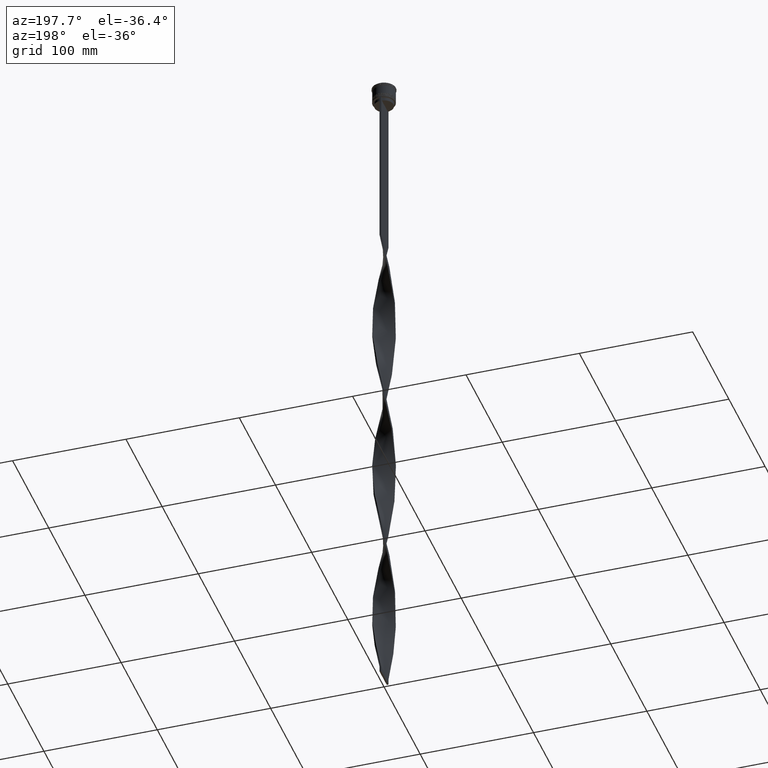
[diagram: clean part render]
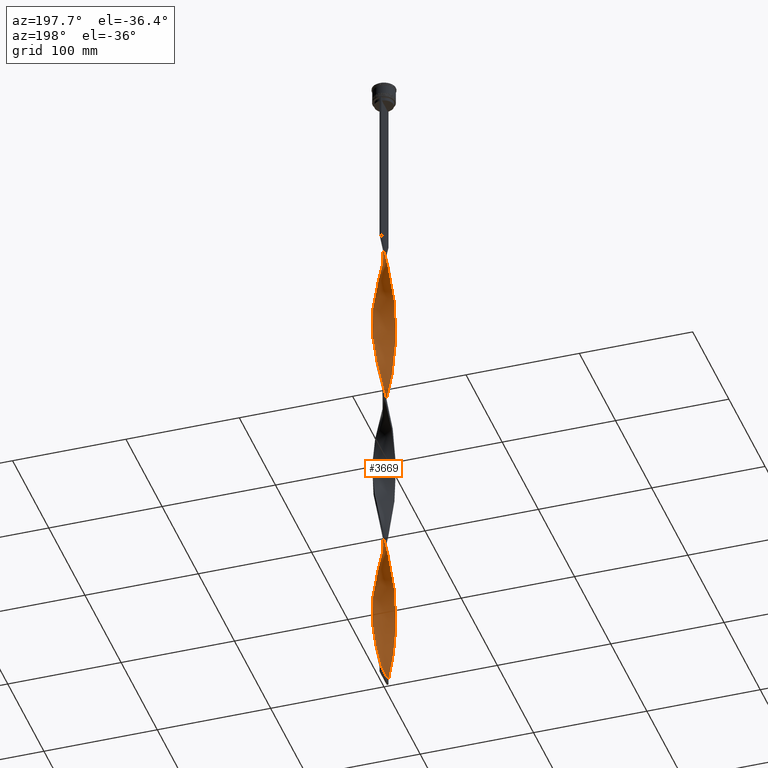
[diagram: same view with one face highlighted and labeled with its STEP entity id]
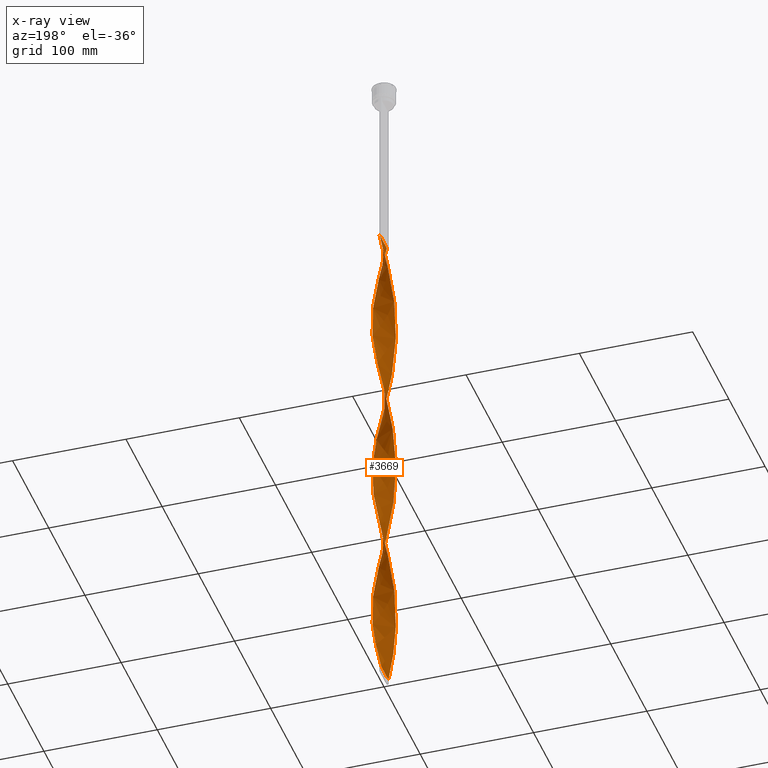
[diagram: x-ray of the same camera — body ghosted, the highlighted face saturated]
A machine part, auxiliary view. The second image highlights one B-rep face of the part: STEP entity #3669.
The next image is the same camera in x-ray: the body ghosted, the highlighted face saturated — about 0% of this face is hidden behind the body in this view.
In plain terms, the highlighted face is a freeform B-spline surface patch.
Its self-contained STEP definition (entity closure, byte-faithful):
#2 = CARTESIAN_POINT ( 'NONE',  ( 9.525807899386689925, -3.133924674267435151, -515.0416666666666288 ) ) ;
#3 = CARTESIAN_POINT ( 'NONE',  ( -8.951782750839049285, 4.519743973034362483, -515.0416666666666288 ) ) ;
#5 = CARTESIAN_POINT ( 'NONE',  ( 4.519743973034367812, 8.951782750839045733, -439.8749999999999432 ) ) ;
#21 = CARTESIAN_POINT ( 'NONE',  ( 7.914964995880704457, 6.192563292782586437, -562.0208333333331439 ) ) ;
#36 = CARTESIAN_POINT ( 'NONE',  ( -1.217921924187932881, 9.975528918694859470, -468.0624999999999432 ) ) ;
#43 = CARTESIAN_POINT ( 'NONE',  ( 9.465143979063798341, 3.312634820742009101, -546.3611111111110858 ) ) ;
#58 = CARTESIAN_POINT ( 'NONE',  ( -6.682629295305633654, -7.476962331155807995, -577.6805555555555429 ) ) ;
#65 = CARTESIAN_POINT ( 'NONE',  ( 6.042515785520209626, 8.030100497682093774, -574.5486111111110858 ) ) ;
#78 = CARTESIAN_POINT ( 'NONE',  ( -8.390104474668893531, -5.492599284868775911, -565.1527777777778283 ) ) ;
#89 = CARTESIAN_POINT ( 'NONE',  ( 6.540737725975558803, -7.601397897755388655, -345.9166666666666288 ) ) ;
#107 = CARTESIAN_POINT ( 'NONE',  ( -8.030100497682091998, -6.042515785520200744, -568.2847222222220580 ) ) ;
#111 = CARTESIAN_POINT ( 'NONE',  ( -9.853372546717572789, -1.863746081308404801, -245.6944444444444287 ) ) ;
#117 = CARTESIAN_POINT ( 'NONE',  ( 6.540737725975569461, 7.601397897755389543, -270.7500000000000000 ) ) ;
#125 = CARTESIAN_POINT ( 'NONE',  ( 1.405434628152382404, -9.950842402888577354, -161.1319444444444002 ) ) ;
#131 = CARTESIAN_POINT ( 'NONE',  ( -0.7500000000000014433, -9.999999999999998224, -308.3333333333333712 ) ) ;
#143 = CARTESIAN_POINT ( 'NONE',  ( -0.7499999999999988898, 10.00000000000000533, -609.0000000000000000 ) ) ;
#146 = CARTESIAN_POINT ( 'NONE',  ( -3.933013133174654730, -9.248022421870020437, -593.3402777777778283 ) ) ;
#169 = CARTESIAN_POINT ( 'NONE',  ( 8.285254037844390851, 5.649519052838329891, -258.2222222222221717 ) ) ;
#175 = CARTESIAN_POINT ( 'NONE',  ( -7.172695297828680872, -7.038959666430922191, -273.8819444444444002 ) ) ;
#191 = CARTESIAN_POINT ( 'NONE',  ( -3.312634820742005992, 9.465143979063800117, -320.8611111111110858 ) ) ;
#201 = CARTESIAN_POINT ( 'NONE',  ( 6.682629295305634543, -7.476962331155817765, -189.3194444444444287 ) ) ;
#211 = CARTESIAN_POINT ( 'NONE',  ( -9.035254037844390851, 4.350480947161678102, -358.4444444444444571 ) ) ;
#212 = CARTESIAN_POINT ( 'NONE',  ( 1.863746081308401470, -9.853372546717572789, -320.8611111111110858 ) ) ;
#220 = CARTESIAN_POINT ( 'NONE',  ( 3.312634820742009989, -9.465143979063798341, -471.1944444444444002 ) ) ;
#232 = CARTESIAN_POINT ( 'NONE',  ( -4.519743973034358930, 8.951782750839058167, -327.1250000000000000 ) ) ;
#235 = CARTESIAN_POINT ( 'NONE',  ( -4.350480947161669221, 9.035254037844387298, -183.0555555555555145 ) ) ;
#237 = CARTESIAN_POINT ( 'NONE',  ( -8.951782750839049285, 4.519743973034362483, -214.3749999999999716 ) ) ;
#246 = CARTESIAN_POINT ( 'NONE',  ( -10.04915759711143508, -0.09456537184761194814, -380.3680555555554861 ) ) ;
#255 = CARTESIAN_POINT ( 'NONE',  ( -10.00000000000000533, -0.7499999999999983347, -383.4999999999999432 ) ) ;
#256 = CARTESIAN_POINT ( 'NONE',  ( -6.540737725975564132, 7.601397897755385102, -496.2499999999999432 ) ) ;
#257 = CARTESIAN_POINT ( 'NONE',  ( -10.04915759711142798, 0.09456537184761942827, -236.2986111111110574 ) ) ;
#264 = CARTESIAN_POINT ( 'NONE',  ( -9.731216174740294989, 2.509570238428882494, -367.8402777777777146 ) ) ;
#275 = CARTESIAN_POINT ( 'NONE',  ( -0.09456537184761258652, 10.04915759711143508, -605.8680555555556566 ) ) ;
#276 = CARTESIAN_POINT ( 'NONE',  ( 7.038959666430921303, -7.172695297828681760, -349.0486111111110858 ) ) ;
#278 = CARTESIAN_POINT ( 'NONE',  ( 9.525807899386686373, 3.133924674267425825, -402.2916666666666856 ) ) ;
#288 = CARTESIAN_POINT ( 'NONE',  ( -4.942682784217367065, -8.750108451655693287, -430.4791666666666288 ) ) ;
#298 = CARTESIAN_POINT ( 'NONE',  ( 8.285254037844390851, 5.649519052838329891, -558.8888888888889142 ) ) ;
#299 = CARTESIAN_POINT ( 'NONE',  ( -7.476962331155809771, 6.682629295305631878, -502.5138888888889142 ) ) ;
#306 = CARTESIAN_POINT ( 'NONE',  ( -3.758279110105984699, 9.320399624033077757, -480.5902777777776578 ) ) ;
#317 = CARTESIAN_POINT ( 'NONE',  ( -9.853372546717576341, 1.863746081308415237, -370.9722222222222285 ) ) ;
#325 = EDGE_CURVE ( 'NONE', #3254, #990, #1116, .T. ) ;
#326 = CARTESIAN_POINT ( 'NONE',  ( 0.5616782761701627491, 10.01234325790314905, -602.7361111111110858 ) ) ;
#327 = CARTESIAN_POINT ( 'NONE',  ( -10.04915759711142798, 0.09456537184761953929, -536.9652777777778283 ) ) ;
#329 = CARTESIAN_POINT ( 'NONE',  ( 9.975528918694859470, 1.217921924187924443, -392.8958333333332575 ) ) ;
#346 = CARTESIAN_POINT ( 'NONE',  ( -1.217921924187939320, -9.975528918694864799, -449.2708333333333712 ) ) ;
#347 = CARTESIAN_POINT ( 'NONE',  ( 9.320399624033077757, 3.758279110105982923, -405.4236111111110858 ) ) ;
#350 = CARTESIAN_POINT ( 'NONE',  ( -3.312634820742010877, -9.465143979063789459, -295.8055555555555429 ) ) ;
#358 = CARTESIAN_POINT ( 'NONE',  ( 9.035254037844390851, -4.350480947161673662, -508.7777777777777715 ) ) ;
#370 = CARTESIAN_POINT ( 'NONE',  ( 9.035254037844389075, 4.350480947161663003, -408.5555555555555429 ) ) ;
#385 = CARTESIAN_POINT ( 'NONE',  ( 4.942682784217361736, 8.750108451655696840, -580.8124999999998863 ) ) ;
#399 = CARTESIAN_POINT ( 'NONE',  ( -9.035254037844387298, -4.350480947161667444, -558.8888888888889142 ) ) ;
#402 = CARTESIAN_POINT ( 'NONE',  ( 10.01234325790314905, -0.5616782761701598625, -226.9027777777777715 ) ) ;
#412 = CARTESIAN_POINT ( 'NONE',  ( 4.350480947161677214, 9.035254037844390851, -583.9444444444443434 ) ) ;
#423 = CARTESIAN_POINT ( 'NONE',  ( -2.048845568230877934, -9.816553969573064364, -602.7361111111110858 ) ) ;
#426 = CARTESIAN_POINT ( 'NONE',  ( -7.476962331155810659, 6.682629295305631878, -502.5138888888889142 ) ) ;
#435 = CARTESIAN_POINT ( 'NONE',  ( -3.312634820742010877, -9.465143979063789459, -295.8055555555555429 ) ) ;
#436 = CARTESIAN_POINT ( 'NONE',  ( 9.731216174740294989, -2.509570238428881606, -518.1736111111110858 ) ) ;
#447 = CARTESIAN_POINT ( 'NONE',  ( 8.030100497682093774, -6.042515785520210514, -198.7152777777777430 ) ) ;
#456 = CARTESIAN_POINT ( 'NONE',  ( -7.038959666430921303, 7.172695297828681760, -198.7152777777777430 ) ) ;
#463 = CARTESIAN_POINT ( 'NONE',  ( 1.405434628152382404, -9.950842402888575577, -161.1319444444444002 ) ) ;
#469 = CARTESIAN_POINT ( 'NONE',  ( -3.933013133174654286, -9.248022421870020437, -593.3402777777777146 ) ) ;
#473 = CARTESIAN_POINT ( 'NONE',  ( 7.601397897755390431, -6.540737725975569461, -195.5833333333333144 ) ) ;
#483 = CARTESIAN_POINT ( 'NONE',  ( 3.933013133174654286, -9.248022421870029319, -173.6597222222221717 ) ) ;
#490 = CARTESIAN_POINT ( 'NONE',  ( -10.04915759711142798, 0.09456537184761942827, -536.9652777777778283 ) ) ;
#495 = CARTESIAN_POINT ( 'NONE',  ( 2.509570238428873168, -9.731216174740291436, -323.9930555555555998 ) ) ;
#510 = CARTESIAN_POINT ( 'NONE',  ( -10.04915759711143508, -0.09456537184761194814, -380.3680555555554861 ) ) ;
#512 = CARTESIAN_POINT ( 'NONE',  ( -7.038959666430922191, 7.172695297828680872, -198.7152777777777430 ) ) ;
#535 = CARTESIAN_POINT ( 'NONE',  ( 7.914964995880705345, 6.192563292782586437, -261.3541666666666856 ) ) ;
#539 = CARTESIAN_POINT ( 'NONE',  ( -9.320399624033077757, -3.758279110105983811, -255.0902777777776862 ) ) ;
#546 = CARTESIAN_POINT ( 'NONE',  ( 10.01234325790314905, -0.5616782761701598625, -226.9027777777777715 ) ) ;
#556 = CARTESIAN_POINT ( 'NONE',  ( 7.038959666430931073, 7.172695297828681760, -267.6180555555555429 ) ) ;
#566 = CARTESIAN_POINT ( 'NONE',  ( 2.048845568230874381, -9.816553969573071470, -464.9305555555555429 ) ) ;
#575 = CARTESIAN_POINT ( 'NONE',  ( 7.476962331155817765, 6.682629295305632766, -264.4861111111110858 ) ) ;
#586 = CARTESIAN_POINT ( 'NONE',  ( -7.601397897755386879, 6.540737725975573014, -345.9166666666666288 ) ) ;
#598 = CARTESIAN_POINT ( 'NONE',  ( -10.01234325790314905, 0.5616782761701678561, -377.2361111111110858 ) ) ;
#601 = CARTESIAN_POINT ( 'NONE',  ( 6.192563292782591766, 7.914964995880690246, -430.4791666666666288 ) ) ;
#610 = CARTESIAN_POINT ( 'NONE',  ( -9.465143979063800117, -3.312634820742005548, -396.0277777777777715 ) ) ;
#618 = CARTESIAN_POINT ( 'NONE',  ( 6.682629295305634543, -7.476962331155817765, -489.9861111111111427 ) ) ;
#619 = CARTESIAN_POINT ( 'NONE',  ( -9.816553969573064364, 2.048845568230875269, -527.5694444444444571 ) ) ;
#621 = CARTESIAN_POINT ( 'NONE',  ( 9.465143979063789459, -3.312634820742016206, -370.9722222222222285 ) ) ;
#635 = CARTESIAN_POINT ( 'NONE',  ( -9.950842402888579130, -1.405434628152375742, -386.6319444444444571 ) ) ;
#646 = CARTESIAN_POINT ( 'NONE',  ( 9.950842402888577354, 1.405434628152381071, -536.9652777777778283 ) ) ;
#647 = CARTESIAN_POINT ( 'NONE',  ( 9.035254037844389075, 4.350480947161663003, -408.5555555555555429 ) ) ;
#649 = CARTESIAN_POINT ( 'NONE',  ( -2.509570238428877609, 9.731216174740289659, -474.3263888888889142 ) ) ;
#656 = CARTESIAN_POINT ( 'NONE',  ( -2.692256508309363028, 9.682265536257567362, -317.7291666666665719 ) ) ;
#665 = CARTESIAN_POINT ( 'NONE',  ( 9.975528918694866576, -1.217921924187935545, -524.4375000000000000 ) ) ;
#667 = CARTESIAN_POINT ( 'NONE',  ( 9.950842402888570248, -1.405434628152387733, -380.3680555555554861 ) ) ;
#671 = CARTESIAN_POINT ( 'NONE',  ( 1.863746081308401692, -9.853372546717572789, -320.8611111111110858 ) ) ;
#683 = CARTESIAN_POINT ( 'NONE',  ( 6.540737725975569461, 7.601397897755389543, -571.4166666666666288 ) ) ;
#689 = CARTESIAN_POINT ( 'NONE',  ( 0.09456537184761140691, -10.04915759711143508, -455.5347222222221149 ) ) ;
#690 = CARTESIAN_POINT ( 'NONE',  ( -1.217921924187932881, 9.975528918694857694, -468.0624999999999432 ) ) ;
#693 = CARTESIAN_POINT ( 'NONE',  ( 8.750108451655693287, 4.942682784217351077, -411.6875000000000000 ) ) ;
#708 = CARTESIAN_POINT ( 'NONE',  ( 8.655543079808083462, 5.106474812894074233, -555.7569444444444571 ) ) ;
#709 = VERTEX_POINT ( 'NONE', #143 ) ;
#714 = CARTESIAN_POINT ( 'NONE',  ( -1.405434628152386844, -9.950842402888570248, -305.2013888888888573 ) ) ;
#724 = CARTESIAN_POINT ( 'NONE',  ( 7.476962331155817765, 6.682629295305632766, -565.1527777777778283 ) ) ;
#734 = CARTESIAN_POINT ( 'NONE',  ( -2.692256508309368801, -9.682265536257558480, -599.6041666666666288 ) ) ;
#737 = CARTESIAN_POINT ( 'NONE',  ( 9.853372546717578118, -1.863746081308409464, -220.6388888888888857 ) ) ;
#752 = CARTESIAN_POINT ( 'NONE',  ( 7.172695297828685312, -7.038959666430928408, -493.1180555555555429 ) ) ;
#768 = CARTESIAN_POINT ( 'NONE',  ( -9.731216174740289659, -2.509570238428876277, -549.4930555555553156 ) ) ;
#779 = CARTESIAN_POINT ( 'NONE',  ( 2.509570238428882050, 9.731216174740294989, -593.3402777777777146 ) ) ;
#792 = CARTESIAN_POINT ( 'NONE',  ( -9.853372546717572789, -1.863746081308404801, -546.3611111111110858 ) ) ;
#800 = CARTESIAN_POINT ( 'NONE',  ( -10.04915759711142798, 0.09456537184761953929, -236.2986111111110574 ) ) ;
#811 = CARTESIAN_POINT ( 'NONE',  ( -6.682629295305633654, -7.476962331155807995, -577.6805555555555429 ) ) ;
#815 = CARTESIAN_POINT ( 'NONE',  ( 5.649519052838331667, -8.285254037844390851, -183.0555555555555145 ) ) ;
#822 = CARTESIAN_POINT ( 'NONE',  ( -2.048845568230877934, -9.816553969573064364, -302.0694444444444002 ) ) ;
#842 = CARTESIAN_POINT ( 'NONE',  ( -9.465143979063789459, 3.312634820742010433, -521.3055555555554292 ) ) ;
#847 = CARTESIAN_POINT ( 'NONE',  ( -10.01234325790314195, -0.5616782761701553106, -239.4305555555555429 ) ) ;
#860 = CARTESIAN_POINT ( 'NONE',  ( -8.285254037844394404, -5.649519052838325450, -408.5555555555555429 ) ) ;
#871 = CARTESIAN_POINT ( 'NONE',  ( 9.816553969573071470, 2.048845568230872605, -239.4305555555555429 ) ) ;
#879 = CARTESIAN_POINT ( 'NONE',  ( -6.682629295305632766, 7.476962331155817765, -339.6527777777777715 ) ) ;
#891 = CARTESIAN_POINT ( 'NONE',  ( 5.106474812894076010, -8.655543079808081686, -179.9236111111110574 ) ) ;
#904 = CARTESIAN_POINT ( 'NONE',  ( 9.950842402888577354, 1.405434628152381071, -236.2986111111110574 ) ) ;
#909 = CARTESIAN_POINT ( 'NONE',  ( -2.509570238428877609, 9.731216174740289659, -173.6597222222221717 ) ) ;
#917 = CARTESIAN_POINT ( 'NONE',  ( 8.750108451655698616, -4.942682784217360847, -204.9791666666666288 ) ) ;
#926 = VERTEX_POINT ( 'NONE', #4115 ) ;
#929 = CARTESIAN_POINT ( 'NONE',  ( 10.04915759711143508, 0.09456537184761544534, -230.0347222222222001 ) ) ;
#931 = CARTESIAN_POINT ( 'NONE',  ( -1.863746081308405689, 9.853372546717572789, -170.5277777777777430 ) ) ;
#937 = CARTESIAN_POINT ( 'NONE',  ( -9.816553969573071470, -2.048845568230871717, -389.7638888888889142 ) ) ;
#940 = LINE ( 'NONE', #2329, #4295 ) ;
#946 = CARTESIAN_POINT ( 'NONE',  ( 2.509570238428882050, 9.731216174740294989, -292.6736111111110290 ) ) ;
#947 = CARTESIAN_POINT ( 'NONE',  ( 2.692256508309369689, 9.682265536257556704, -449.2708333333333144 ) ) ;
#949 = CARTESIAN_POINT ( 'NONE',  ( -10.01234325790314195, -0.5616782761701554216, -239.4305555555555429 ) ) ;
#956 = CARTESIAN_POINT ( 'NONE',  ( -10.00000000000000533, -0.7499999999999983347, -383.4999999999999432 ) ) ;
#969 = CARTESIAN_POINT ( 'NONE',  ( 7.038959666430931073, 7.172695297828681760, -568.2847222222220580 ) ) ;
#972 = CARTESIAN_POINT ( 'NONE',  ( 8.951782750839045733, -4.519743973034367812, -364.7083333333333144 ) ) ;
#974 = CARTESIAN_POINT ( 'NONE',  ( 10.01234325790314195, 0.5616782761701544224, -389.7638888888889142 ) ) ;
#985 = CARTESIAN_POINT ( 'NONE',  ( -7.914964995880706233, -6.192563292782585549, -411.6875000000000000 ) ) ;
#990 = VERTEX_POINT ( 'NONE', #2187 ) ;
#993 = CARTESIAN_POINT ( 'NONE',  ( 9.853372546717578118, -1.863746081308409464, -521.3055555555554292 ) ) ;
#994 = CARTESIAN_POINT ( 'NONE',  ( 8.285254037844381969, -5.649519052838333444, -358.4444444444444571 ) ) ;
#996 = CARTESIAN_POINT ( 'NONE',  ( 9.682265536257556704, -2.692256508309369245, -374.1041666666665719 ) ) ;
#1007 = CARTESIAN_POINT ( 'NONE',  ( -7.172695297828681760, 7.038959666430931073, -342.7847222222222285 ) ) ;
#1015 = CARTESIAN_POINT ( 'NONE',  ( 0.7500000000000001110, -10.00000000000000533, -458.6666666666666856 ) ) ;
#1016 = CARTESIAN_POINT ( 'NONE',  ( -9.975528918694857694, -1.217921924187930216, -543.2291666666665151 ) ) ;
#1018 = CARTESIAN_POINT ( 'NONE',  ( 3.133924674267426269, -9.525807899386686373, -327.1250000000000000 ) ) ;
#1040 = CARTESIAN_POINT ( 'NONE',  ( 4.519743973034367812, 8.951782750839045733, -439.8749999999999432 ) ) ;
#1044 = CARTESIAN_POINT ( 'NONE',  ( 0.7500000000000001110, 9.999999999999998224, -458.6666666666666856 ) ) ;
#1055 = CARTESIAN_POINT ( 'NONE',  ( 4.519743973034364259, -8.951782750839054614, -477.4583333333333144 ) ) ;
#1064 = CARTESIAN_POINT ( 'NONE',  ( -2.509570238428882938, -9.731216174740294989, -443.0069444444444002 ) ) ;
#1068 = CARTESIAN_POINT ( 'NONE',  ( 9.950842402888570248, -1.405434628152387511, -380.3680555555554861 ) ) ;
#1077 = CARTESIAN_POINT ( 'NONE',  ( 8.390104474668897083, -5.492599284868783904, -502.5138888888889142 ) ) ;
#1090 = CARTESIAN_POINT ( 'NONE',  ( 9.731216174740294989, -2.509570238428881606, -217.5069444444443718 ) ) ;
#1111 = CARTESIAN_POINT ( 'NONE',  ( -9.320399624033077757, -3.758279110105983811, -555.7569444444444571 ) ) ;
#1116 =( BOUNDED_CURVE ( )  B_SPLINE_CURVE ( 2, ( #1900, #4103, #4315, #3753, #931, #2719, #1281, #1539, #235, #2272, #3629, #2953, #1657, #456, #1881, #3608, #4447, #1148, #3286, #4354, #2568, #3986, #3966, #1302, #2007, #800, #847, #3303, #111, #2224, #1519, #2935, #1191, #1166, #2614, #4333, #3408, #2588, #3672, #3063, #2700, #1499, #2915, #2204, #435, #4120, #822, #1856, #131, #2249, #3652, #4016, #212, #495, #1922, #3326, #1630, #2356, #3259, #4471, #89, #276, #3103, #2738, #994, #1724, #972, #4492, #1322, #3772, #1746, #667, #3815, #2032, #2422, #1413, #1700, #1390, #3154, #347, #647, #3859, #2072, #3524, #4513, #2807, #4208, #601, #2401, #1346, #1040, #3177, #2443, #947, #3478, #2472, #3455, #3435, #2100, #690, #3835, #4141, #3133, #2832, #3503, #2766, #2377, #4166, #256, #3797, #299, #4541, #2120, #1770, #3, #1368, #1679, #3084, #619, #2053, #2785, #327, #4186, #1016, #4564, #2234, #1439, #1845, #399, #3977, #2855, #1480, #3544, #3225, #811, #3641, #1460, #4257, #3295, #469, #3204, #734, #423, #3245, #4237 ),
 .UNSPECIFIED., .F., .T. ) 
 B_SPLINE_CURVE_WITH_KNOTS ( ( 3, 2, 2, 2, 2, 2, 2, 2, 2, 2, 2, 2, 2, 2, 2, 2, 2, 2, 2, 2, 2, 2, 2, 2, 2, 2, 2, 2, 2, 2, 2, 2, 2, 2, 2, 2, 2, 2, 2, 2, 2, 2, 2, 2, 2, 2, 2, 2, 2, 2, 2, 2, 2, 2, 2, 2, 2, 2, 2, 2, 2, 2, 2, 2, 2, 2, 2, 2, 2, 2, 2, 2, 3 ),
 ( 0.000000000000000000, 0.01041666666666666609, 0.02083333333333333218, 0.03125000000000000000, 0.04166666666666666435, 0.05208333333333333565, 0.06250000000000000000, 0.07291666666666667129, 0.08333333333333332871, 0.09375000000000000000, 0.1041666666666666713, 0.1145833333333333287, 0.1250000000000000000, 0.1354166666666666574, 0.1458333333333333426, 0.1562500000000000000, 0.1666666666666666574, 0.1770833333333333426, 0.1875000000000000000, 0.1979166666666666574, 0.2083333333333333426, 0.2187500000000000000, 0.2291666666666666574, 0.2395833333333333426, 0.2500000000000000000, 0.2604166666666666852, 0.2708333333333333148, 0.2812500000000000000, 0.2916666666666666852, 0.3020833333333333148, 0.3125000000000000000, 0.3229166666666666852, 0.3333333333333333148, 0.3437500000000000000, 0.3541666666666666852, 0.3645833333333333148, 0.3750000000000000000, 0.3854166666666666852, 0.3958333333333333148, 0.4062500000000000000, 0.4166666666666666852, 0.4270833333333333148, 0.4375000000000000000, 0.4479166666666666852, 0.4583333333333333148, 0.4687500000000000000, 0.4791666666666666852, 0.4895833333333333148, 0.5000000000000000000, 0.5104166666666666297, 0.5208333333333333703, 0.5312500000000000000, 0.5416666666666666297, 0.5520833333333333703, 0.5625000000000000000, 0.5729166666666666297, 0.5833333333333333703, 0.5937500000000000000, 0.6041666666666666297, 0.6145833333333333703, 0.6250000000000000000, 0.6354166666666666297, 0.6458333333333333703, 0.6562500000000000000, 0.6666666666666666297, 0.6770833333333333703, 0.6875000000000000000, 0.6979166666666666297, 0.7083333333333333703, 0.7187500000000000000, 0.7291666666666666297, 0.7395833333333333703, 0.7500000000000000000 ),
 .UNSPECIFIED. ) 
 CURVE ( )  GEOMETRIC_REPRESENTATION_ITEM ( )  RATIONAL_B_SPLINE_CURVE ( ( 1.000000000000000000, 0.9978589232386034791, 1.000000000000000000, 0.9978589232386034791, 1.000000000000000000, 0.9978589232386034791, 1.000000000000000000, 0.9978589232386034791, 1.000000000000000000, 0.9978589232386034791, 1.000000000000000000, 0.9978589232386034791, 1.000000000000000000, 0.9978589232386034791, 1.000000000000000000, 0.9978589232386034791, 1.000000000000000000, 0.9978589232386034791, 1.000000000000000000, 0.9978589232386034791, 1.000000000000000000, 0.9978589232386034791, 1.000000000000000000, 0.9978589232386034791, 1.000000000000000000, 0.9978589232386034791, 1.000000000000000000, 0.9978589232386034791, 1.000000000000000000, 0.9978589232386034791, 1.000000000000000000, 0.9978589232386034791, 1.000000000000000000, 0.9978589232386034791, 1.000000000000000000, 0.9978589232386034791, 1.000000000000000000, 0.9978589232386034791, 1.000000000000000000, 0.9978589232386034791, 1.000000000000000000, 0.9978589232386034791, 1.000000000000000000, 0.9978589232386034791, 1.000000000000000000, 0.9978589232386034791, 1.000000000000000000, 0.9978589232386034791, 1.000000000000000000, 0.9978589232386034791, 1.000000000000000000, 0.9978589232386034791, 1.000000000000000000, 0.9978589232386034791, 1.000000000000000000, 0.9978589232386034791, 1.000000000000000000, 0.9978589232386034791, 1.000000000000000000, 0.9978589232386034791, 1.000000000000000000, 0.9978589232386034791, 1.000000000000000000, 0.9978589232386034791, 1.000000000000000000, 0.9978589232386034791, 1.000000000000000000, 0.9978589232386034791, 1.000000000000000000, 0.9978589232386034791, 1.000000000000000000, 0.9978589232386034791, 1.000000000000000000, 0.9978589232386034791, 1.000000000000000000, 0.9978589232386034791, 1.000000000000000000, 0.9978589232386034791, 1.000000000000000000, 0.9978589232386034791, 1.000000000000000000, 0.9978589232386034791, 1.000000000000000000, 0.9978589232386034791, 1.000000000000000000, 0.9978589232386034791, 1.000000000000000000, 0.9978589232386034791, 1.000000000000000000, 0.9978589232386034791, 1.000000000000000000, 0.9978589232386034791, 1.000000000000000000, 0.9978589232386034791, 1.000000000000000000, 0.9978589232386034791, 1.000000000000000000, 0.9978589232386034791, 1.000000000000000000, 0.9978589232386034791, 1.000000000000000000, 0.9978589232386034791, 1.000000000000000000, 0.9978589232386034791, 1.000000000000000000, 0.9978589232386034791, 1.000000000000000000, 0.9978589232386034791, 1.000000000000000000, 0.9978589232386034791, 1.000000000000000000, 0.9978589232386034791, 1.000000000000000000, 0.9978589232386034791, 1.000000000000000000, 0.9978589232386034791, 1.000000000000000000, 0.9978589232386034791, 1.000000000000000000, 0.9978589232386034791, 1.000000000000000000, 0.9978589232386034791, 1.000000000000000000, 0.9978589232386034791, 1.000000000000000000, 0.9978589232386034791, 1.000000000000000000, 0.9978589232386034791, 1.000000000000000000, 0.9978589232386034791, 1.000000000000000000, 0.9978589232386034791, 1.000000000000000000, 0.9978589232386034791, 1.000000000000000000, 0.9978589232386034791, 1.000000000000000000, 0.9978589232386034791, 1.000000000000000000, 0.9978589232386034791, 1.000000000000000000, 0.9978589232386034791, 1.000000000000000000, 0.9978589232386034791, 1.000000000000000000 ) ) 
 REPRESENTATION_ITEM ( '' )  );
#1140 = CARTESIAN_POINT ( 'NONE',  ( -3.312634820742010877, -9.465143979063789459, -596.4722222222222854 ) ) ;
#1148 = CARTESIAN_POINT ( 'NONE',  ( -8.655543079808072804, 5.106474812894075122, -211.2430555555555145 ) ) ;
#1161 = CARTESIAN_POINT ( 'NONE',  ( -6.192563292782588213, -7.914964995880694687, -580.8124999999998863 ) ) ;
#1166 = CARTESIAN_POINT ( 'NONE',  ( -8.750108451655693287, -4.942682784217351966, -261.3541666666666856 ) ) ;
#1173 = CARTESIAN_POINT ( 'NONE',  ( 6.192563292782588213, -7.914964995880702681, -186.1874999999999716 ) ) ;
#1182 = CARTESIAN_POINT ( 'NONE',  ( 9.525807899386689925, -3.133924674267435151, -214.3749999999999716 ) ) ;
#1191 = CARTESIAN_POINT ( 'NONE',  ( -9.035254037844387298, -4.350480947161667444, -258.2222222222221717 ) ) ;
#1211 = CARTESIAN_POINT ( 'NONE',  ( 1.863746081308410352, 9.853372546717578118, -295.8055555555555429 ) ) ;
#1223 = CARTESIAN_POINT ( 'NONE',  ( 8.390104474668897083, -5.492599284868783904, -201.8472222222222001 ) ) ;
#1230 = EDGE_CURVE ( 'NONE', #926, #709, #4423, .T. ) ;
#1232 = CARTESIAN_POINT ( 'NONE',  ( -7.038959666430931073, -7.172695297828680872, -417.9513888888888005 ) ) ;
#1236 = CARTESIAN_POINT ( 'NONE',  ( -4.350480947161669221, 9.035254037844387298, -183.0555555555555145 ) ) ;
#1251 = CARTESIAN_POINT ( 'NONE',  ( 9.465143979063798341, 3.312634820742009101, -245.6944444444444287 ) ) ;
#1267 = CARTESIAN_POINT ( 'NONE',  ( 8.655543079808081686, 5.106474812894074233, -255.0902777777777146 ) ) ;
#1279 = CARTESIAN_POINT ( 'NONE',  ( -8.951782750839058167, -4.519743973034358930, -402.2916666666666856 ) ) ;
#1281 = CARTESIAN_POINT ( 'NONE',  ( -3.133924674267432042, 9.525807899386684596, -176.7916666666666572 ) ) ;
#1290 = CARTESIAN_POINT ( 'NONE',  ( 2.509570238428882050, 9.731216174740294989, -292.6736111111110858 ) ) ;
#1301 = CARTESIAN_POINT ( 'NONE',  ( 10.00000000000000533, 0.7499999999999994449, -233.1666666666666288 ) ) ;
#1302 = CARTESIAN_POINT ( 'NONE',  ( -9.950842402888570248, 1.405434628152384180, -230.0347222222222001 ) ) ;
#1312 = CARTESIAN_POINT ( 'NONE',  ( -6.682629295305632766, 7.476962331155817765, -339.6527777777777715 ) ) ;
#1321 = CARTESIAN_POINT ( 'NONE',  ( 5.492599284868785681, 8.390104474668895307, -577.6805555555555429 ) ) ;
#1322 = CARTESIAN_POINT ( 'NONE',  ( 9.465143979063789459, -3.312634820742016206, -370.9722222222222285 ) ) ;
#1323 = CARTESIAN_POINT ( 'NONE',  ( -6.042515785520205185, 8.030100497682090221, -192.4513888888888289 ) ) ;
#1332 = CARTESIAN_POINT ( 'NONE',  ( 1.217921924187938210, 9.975528918694864799, -298.9374999999999432 ) ) ;
#1344 = CARTESIAN_POINT ( 'NONE',  ( 4.519743973034364259, -8.951782750839054614, -477.4583333333333144 ) ) ;
#1346 = CARTESIAN_POINT ( 'NONE',  ( 5.106474812894081339, 8.655543079808067475, -436.7430555555554861 ) ) ;
#1350 = CARTESIAN_POINT ( 'NONE',  ( 0.09456537184761801274, 10.04915759711142798, -461.7986111111110290 ) ) ;
#1360 = CARTESIAN_POINT ( 'NONE',  ( -0.09456537184761260040, 10.04915759711143508, -305.2013888888888573 ) ) ;
#1367 = CARTESIAN_POINT ( 'NONE',  ( 1.863746081308410352, 9.853372546717578118, -596.4722222222222854 ) ) ;
#1368 = CARTESIAN_POINT ( 'NONE',  ( -9.248022421870020437, 3.933013133174653397, -518.1736111111110858 ) ) ;
#1370 = CARTESIAN_POINT ( 'NONE',  ( 9.816553969573060812, -2.048845568230882375, -377.2361111111110858 ) ) ;
#1382 = CARTESIAN_POINT ( 'NONE',  ( -0.5616782761701686333, -10.01234325790314905, -452.4027777777777715 ) ) ;
#1389 = CARTESIAN_POINT ( 'NONE',  ( 9.035254037844390851, -4.350480947161673662, -508.7777777777777715 ) ) ;
#1390 = CARTESIAN_POINT ( 'NONE',  ( 9.731216174740289659, 2.509570238428876721, -399.1597222222221149 ) ) ;
#1392 = CARTESIAN_POINT ( 'NONE',  ( 1.217921924187929994, -9.975528918694857694, -317.7291666666665151 ) ) ;
#1401 = CARTESIAN_POINT ( 'NONE',  ( 5.649519052838331667, -8.285254037844390851, -483.7222222222222285 ) ) ;
#1412 = CARTESIAN_POINT ( 'NONE',  ( 9.731216174740294989, -2.509570238428881606, -518.1736111111110858 ) ) ;
#1413 = CARTESIAN_POINT ( 'NONE',  ( 9.975528918694857694, 1.217921924187924443, -392.8958333333332575 ) ) ;
#1417 = CARTESIAN_POINT ( 'NONE',  ( 5.492599284868775911, -8.390104474668893531, -339.6527777777777715 ) ) ;
#1439 = CARTESIAN_POINT ( 'NONE',  ( -9.525807899386684596, -3.133924674267429378, -552.6249999999998863 ) ) ;
#1441 = CARTESIAN_POINT ( 'NONE',  ( 3.758279110105982923, -9.320399624033077757, -330.2569444444443434 ) ) ;
#1450 = CARTESIAN_POINT ( 'NONE',  ( -0.7499999999999988898, 10.00000000000000533, -609.0000000000000000 ) ) ;
#1460 = CARTESIAN_POINT ( 'NONE',  ( -5.649519052838331667, -8.285254037844381969, -583.9444444444443434 ) ) ;
#1463 = CARTESIAN_POINT ( 'NONE',  ( -6.540737725975564132, 7.601397897755385102, -496.2499999999999432 ) ) ;
#1471 = CARTESIAN_POINT ( 'NONE',  ( 9.320399624033083086, -3.758279110105990473, -511.9097222222220580 ) ) ;
#1480 = CARTESIAN_POINT ( 'NONE',  ( -8.030100497682091998, -6.042515785520199856, -568.2847222222221717 ) ) ;
#1485 = CARTESIAN_POINT ( 'NONE',  ( -9.816553969573064364, 2.048845568230874825, -527.5694444444444571 ) ) ;
#1499 = CARTESIAN_POINT ( 'NONE',  ( -5.106474812894076010, -8.655543079808072804, -286.4097222222221717 ) ) ;
#1501 = CARTESIAN_POINT ( 'NONE',  ( 8.750108451655698616, -4.942682784217360847, -505.6458333333333712 ) ) ;
#1512 = CARTESIAN_POINT ( 'NONE',  ( -8.655543079808074580, 5.106474812894075122, -511.9097222222220580 ) ) ;
#1519 = CARTESIAN_POINT ( 'NONE',  ( -9.525807899386684596, -3.133924674267429378, -251.9583333333332860 ) ) ;
#1525 = CARTESIAN_POINT ( 'NONE',  ( 6.042515785520209626, 8.030100497682093774, -273.8819444444443434 ) ) ;
#1534 = CARTESIAN_POINT ( 'NONE',  ( 8.750108451655698616, -4.942682784217360847, -204.9791666666666288 ) ) ;
#1539 = CARTESIAN_POINT ( 'NONE',  ( -3.758279110105984699, 9.320399624033077757, -179.9236111111110574 ) ) ;
#1545 = CARTESIAN_POINT ( 'NONE',  ( 8.030100497682093774, -6.042515785520209626, -198.7152777777777430 ) ) ;
#1556 = CARTESIAN_POINT ( 'NONE',  ( 5.106474812894076010, -8.655543079808083462, -179.9236111111110574 ) ) ;
#1584 = CARTESIAN_POINT ( 'NONE',  ( -9.731216174740294989, 2.509570238428882494, -367.8402777777777146 ) ) ;
#1607 = CARTESIAN_POINT ( 'NONE',  ( -6.192563292782586437, 7.914964995880707122, -336.5208333333332575 ) ) ;
#1611 = CARTESIAN_POINT ( 'NONE',  ( -1.863746081308405689, 9.853372546717572789, -170.5277777777777430 ) ) ;
#1620 = CARTESIAN_POINT ( 'NONE',  ( 10.00000000000000533, 0.7499999999999994449, -233.1666666666666288 ) ) ;
#1629 = CARTESIAN_POINT ( 'NONE',  ( -9.853372546717576341, 1.863746081308415237, -370.9722222222222285 ) ) ;
#1630 = CARTESIAN_POINT ( 'NONE',  ( 4.350480947161667444, -9.035254037844387298, -333.3888888888888573 ) ) ;
#1643 = CARTESIAN_POINT ( 'NONE',  ( 3.933013133174654286, -9.248022421870029319, -474.3263888888889142 ) ) ;
#1655 = CARTESIAN_POINT ( 'NONE',  ( -2.692256508309363028, 9.682265536257567362, -317.7291666666665151 ) ) ;
#1657 = CARTESIAN_POINT ( 'NONE',  ( -6.540737725975564132, 7.601397897755385102, -195.5833333333333144 ) ) ;
#1659 = CARTESIAN_POINT ( 'NONE',  ( -9.465143979063789459, 3.312634820742010433, -220.6388888888888857 ) ) ;
#1667 = CARTESIAN_POINT ( 'NONE',  ( -8.030100497682093774, 6.042515785520210514, -349.0486111111110858 ) ) ;
#1678 = CARTESIAN_POINT ( 'NONE',  ( 10.04915759711143508, 0.09456537184761544534, -530.7013888888888005 ) ) ;
#1679 = CARTESIAN_POINT ( 'NONE',  ( -9.465143979063789459, 3.312634820742010433, -521.3055555555554292 ) ) ;
#1680 = CARTESIAN_POINT ( 'NONE',  ( -9.525807899386684596, -3.133924674267429378, -251.9583333333332860 ) ) ;
#1688 = CARTESIAN_POINT ( 'NONE',  ( -1.863746081308415681, -9.853372546717576341, -446.1388888888888573 ) ) ;
#1700 = CARTESIAN_POINT ( 'NONE',  ( 9.853372546717572789, 1.863746081308401026, -396.0277777777777715 ) ) ;
#1702 = CARTESIAN_POINT ( 'NONE',  ( 6.192563292782591766, 7.914964995880691134, -430.4791666666666288 ) ) ;
#1710 = CARTESIAN_POINT ( 'NONE',  ( -4.350480947161678102, -9.035254037844389075, -433.6111111111110858 ) ) ;
#1721 = CARTESIAN_POINT ( 'NONE',  ( 7.914964995880705345, 6.192563292782586437, -562.0208333333331439 ) ) ;
#1724 = CARTESIAN_POINT ( 'NONE',  ( 8.655543079808072804, -5.106474812894073345, -361.5763888888888005 ) ) ;
#1728 = CARTESIAN_POINT ( 'NONE',  ( 7.038959666430922191, -7.172695297828681760, -349.0486111111110858 ) ) ;
#1737 = CARTESIAN_POINT ( 'NONE',  ( -9.682265536257569138, -2.692256508309357699, -392.8958333333332575 ) ) ;
#1744 = CARTESIAN_POINT ( 'NONE',  ( 2.048845568230874381, -9.816553969573071470, -464.9305555555555429 ) ) ;
#1746 = CARTESIAN_POINT ( 'NONE',  ( 9.816553969573060812, -2.048845568230882375, -377.2361111111110858 ) ) ;
#1750 = CARTESIAN_POINT ( 'NONE',  ( 8.390104474668895307, 5.492599284868770582, -414.8194444444444002 ) ) ;
#1769 = CARTESIAN_POINT ( 'NONE',  ( 8.390104474668897083, -5.492599284868783904, -502.5138888888889142 ) ) ;
#1770 = CARTESIAN_POINT ( 'NONE',  ( -8.655543079808072804, 5.106474812894075122, -511.9097222222220580 ) ) ;
#1772 = CARTESIAN_POINT ( 'NONE',  ( 4.942682784217351966, -8.750108451655693287, -336.5208333333332575 ) ) ;
#1782 = CARTESIAN_POINT ( 'NONE',  ( 9.975528918694864799, -1.217921924187935545, -524.4375000000000000 ) ) ;
#1798 = CARTESIAN_POINT ( 'NONE',  ( 2.048845568230883263, 9.816553969573060812, -452.4027777777777715 ) ) ;
#1812 = CARTESIAN_POINT ( 'NONE',  ( 1.217921924187938210, 9.975528918694864799, -599.6041666666666288 ) ) ;
#1826 = CARTESIAN_POINT ( 'NONE',  ( -9.525807899386684596, -3.133924674267429378, -552.6249999999998863 ) ) ;
#1835 = CARTESIAN_POINT ( 'NONE',  ( 6.682629295305634543, -7.476962331155817765, -489.9861111111111427 ) ) ;
#1845 = CARTESIAN_POINT ( 'NONE',  ( -9.320399624033077757, -3.758279110105983811, -555.7569444444444571 ) ) ;
#1849 = CARTESIAN_POINT ( 'NONE',  ( 3.933013133174654730, -9.248022421870031096, -173.6597222222221717 ) ) ;
#1856 = CARTESIAN_POINT ( 'NONE',  ( -1.405434628152387289, -9.950842402888570248, -305.2013888888888573 ) ) ;
#1857 = CARTESIAN_POINT ( 'NONE',  ( 9.816553969573071470, 2.048845568230872605, -540.0972222222221717 ) ) ;
#1870 = CARTESIAN_POINT ( 'NONE',  ( -7.038959666430922191, 7.172695297828680872, -499.3819444444444002 ) ) ;
#1881 = CARTESIAN_POINT ( 'NONE',  ( -7.476962331155809771, 6.682629295305631878, -201.8472222222222001 ) ) ;
#1887 = CARTESIAN_POINT ( 'NONE',  ( 7.476962331155817765, 6.682629295305632766, -264.4861111111110858 ) ) ;
#1894 = CARTESIAN_POINT ( 'NONE',  ( 8.390104474668897083, -5.492599284868783904, -201.8472222222222001 ) ) ;
#1895 = CARTESIAN_POINT ( 'NONE',  ( -0.7500000000000014433, -9.999999999999998224, -609.0000000000000000 ) ) ;
#1900 = CARTESIAN_POINT ( 'NONE',  ( 0.7500000000000002220, 9.999999999999998224, -157.9999999999999716 ) ) ;
#1916 = CARTESIAN_POINT ( 'NONE',  ( -5.649519052838331667, -8.285254037844381969, -583.9444444444443434 ) ) ;
#1922 = CARTESIAN_POINT ( 'NONE',  ( 3.133924674267426269, -9.525807899386686373, -327.1250000000000000 ) ) ;
#1938 = CARTESIAN_POINT ( 'NONE',  ( -6.042515785520214955, -8.030100497682090221, -424.2152777777777146 ) ) ;
#1943 = CARTESIAN_POINT ( 'NONE',  ( -9.816553969573064364, 2.048845568230874825, -226.9027777777777715 ) ) ;
#1953 = CARTESIAN_POINT ( 'NONE',  ( 9.035254037844390851, -4.350480947161673662, -208.1111111111110858 ) ) ;
#1965 = CARTESIAN_POINT ( 'NONE',  ( 9.682265536257567362, 2.692256508309363472, -242.5624999999999147 ) ) ;
#1969 = CARTESIAN_POINT ( 'NONE',  ( -6.192563292782588213, -7.914964995880694687, -280.1458333333333144 ) ) ;
#1975 = ORIENTED_EDGE ( 'NONE', *, *, #3021, .F. ) ;
#1987 = CARTESIAN_POINT ( 'NONE',  ( -7.601397897755386879, 6.540737725975573014, -345.9166666666666288 ) ) ;
#1991 = CARTESIAN_POINT ( 'NONE',  ( -8.285254037844383745, 5.649519052838329891, -208.1111111111110858 ) ) ;
#1998 = CARTESIAN_POINT ( 'NONE',  ( -7.476962331155820429, -6.682629295305629213, -414.8194444444444002 ) ) ;
#2006 = CARTESIAN_POINT ( 'NONE',  ( 4.350480947161677214, 9.035254037844390851, -283.2777777777777146 ) ) ;
#2007 = CARTESIAN_POINT ( 'NONE',  ( -9.999999999999998224, 0.7500000000000008882, -233.1666666666666288 ) ) ;
#2018 = CARTESIAN_POINT ( 'NONE',  ( -10.01234325790314905, 0.5616782761701678561, -377.2361111111110858 ) ) ;
#2030 = CARTESIAN_POINT ( 'NONE',  ( 8.951782750839056391, 4.519743973034362483, -251.9583333333332860 ) ) ;
#2032 = CARTESIAN_POINT ( 'NONE',  ( 10.04915759711142798, -0.09456537184762528470, -386.6319444444444571 ) ) ;
#2033 = CARTESIAN_POINT ( 'NONE',  ( -9.731216174740289659, -2.509570238428876277, -248.8263888888888289 ) ) ;
#2044 = CARTESIAN_POINT ( 'NONE',  ( -2.509570238428883382, -9.731216174740294989, -443.0069444444444002 ) ) ;
#2052 = CARTESIAN_POINT ( 'NONE',  ( 6.540737725975569461, 7.601397897755389543, -571.4166666666666288 ) ) ;
#2053 = CARTESIAN_POINT ( 'NONE',  ( -9.950842402888570248, 1.405434628152384180, -530.7013888888888005 ) ) ;
#2055 = CARTESIAN_POINT ( 'NONE',  ( 2.509570238428873168, -9.731216174740289659, -323.9930555555555429 ) ) ;
#2062 = CARTESIAN_POINT ( 'NONE',  ( -1.405434628152380405, 9.950842402888575577, -311.4652777777777146 ) ) ;
#2071 = CARTESIAN_POINT ( 'NONE',  ( 9.465143979063798341, 3.312634820742009101, -546.3611111111110858 ) ) ;
#2072 = CARTESIAN_POINT ( 'NONE',  ( 8.390104474668895307, 5.492599284868770582, -414.8194444444444002 ) ) ;
#2074 = CARTESIAN_POINT ( 'NONE',  ( -3.133924674267432042, 9.525807899386684596, -477.4583333333333144 ) ) ;
#2084 = CARTESIAN_POINT ( 'NONE',  ( -8.390104474668895307, 5.492599284868785681, -352.1805555555554861 ) ) ;
#2098 = CARTESIAN_POINT ( 'NONE',  ( 10.01234325790314905, -0.5616782761701598625, -527.5694444444444571 ) ) ;
#2100 = CARTESIAN_POINT ( 'NONE',  ( -0.5616782761701574200, 10.01234325790314195, -464.9305555555555429 ) ) ;
#2104 = CARTESIAN_POINT ( 'NONE',  ( 7.914964995880691134, -6.192563292782591766, -355.3124999999998863 ) ) ;
#2111 = CARTESIAN_POINT ( 'NONE',  ( 8.030100497682093774, -6.042515785520209626, -499.3819444444444002 ) ) ;
#2119 = CARTESIAN_POINT ( 'NONE',  ( -4.942682784217367065, -8.750108451655693287, -430.4791666666666288 ) ) ;
#2120 = CARTESIAN_POINT ( 'NONE',  ( -8.285254037844383745, 5.649519052838329891, -508.7777777777777715 ) ) ;
#2122 = CARTESIAN_POINT ( 'NONE',  ( 9.320399624033077757, 3.758279110105982923, -405.4236111111110858 ) ) ;
#2138 = CARTESIAN_POINT ( 'NONE',  ( -0.5616782761701686333, -10.01234325790314905, -452.4027777777777715 ) ) ;
#2142 = CARTESIAN_POINT ( 'NONE',  ( 7.476962331155807995, -6.682629295305633654, -352.1805555555554861 ) ) ;
#2151 = ORIENTED_EDGE ( 'NONE', *, *, #325, .F. ) ;
#2154 = CARTESIAN_POINT ( 'NONE',  ( 10.04915759711143508, 0.09456537184761543147, -530.7013888888888005 ) ) ;
#2169 = CARTESIAN_POINT ( 'NONE',  ( 9.975528918694866576, -1.217921924187935545, -223.7708333333332575 ) ) ;
#2187 = CARTESIAN_POINT ( 'NONE',  ( -0.7500000000000014433, -9.999999999999998224, -609.0000000000000000 ) ) ;
#2196 = CARTESIAN_POINT ( 'NONE',  ( -2.048845568230877934, -9.816553969573064364, -602.7361111111110858 ) ) ;
#2204 = CARTESIAN_POINT ( 'NONE',  ( -3.933013133174654286, -9.248022421870020437, -292.6736111111110858 ) ) ;
#2217 = CARTESIAN_POINT ( 'NONE',  ( -4.519743973034363371, -8.951782750839049285, -590.2083333333333712 ) ) ;
#2224 = CARTESIAN_POINT ( 'NONE',  ( -9.731216174740289659, -2.509570238428876277, -248.8263888888888289 ) ) ;
#2234 = CARTESIAN_POINT ( 'NONE',  ( -9.731216174740289659, -2.509570238428876277, -549.4930555555554292 ) ) ;
#2238 = CARTESIAN_POINT ( 'NONE',  ( 6.192563292782588213, -7.914964995880703569, -186.1875000000000000 ) ) ;
#2249 = CARTESIAN_POINT ( 'NONE',  ( -0.09456537184762008053, -10.04915759711142798, -311.4652777777777146 ) ) ;
#2265 = CARTESIAN_POINT ( 'NONE',  ( -6.042515785520205185, 8.030100497682090221, -493.1180555555555998 ) ) ;
#2272 = CARTESIAN_POINT ( 'NONE',  ( -4.942682784217354630, 8.750108451655691510, -186.1874999999999716 ) ) ;
#2280 = CARTESIAN_POINT ( 'NONE',  ( 9.320399624033083086, -3.758279110105990473, -211.2430555555555145 ) ) ;
#2287 = CARTESIAN_POINT ( 'NONE',  ( -7.914964995880707122, -6.192563292782585549, -411.6875000000000000 ) ) ;
#2290 = CARTESIAN_POINT ( 'NONE',  ( -4.942682784217354630, 8.750108451655691510, -186.1875000000000000 ) ) ;
#2300 = CARTESIAN_POINT ( 'NONE',  ( 9.682265536257567362, 2.692256508309363472, -242.5624999999999432 ) ) ;
#2309 = CARTESIAN_POINT ( 'NONE',  ( -8.390104474668895307, 5.492599284868785681, -352.1805555555554861 ) ) ;
#2313 = CARTESIAN_POINT ( 'NONE',  ( -9.950842402888570248, 1.405434628152383958, -230.0347222222222001 ) ) ;
#2325 = CARTESIAN_POINT ( 'NONE',  ( 7.172695297828685312, -7.038959666430928408, -192.4513888888888289 ) ) ;
#2329 = CARTESIAN_POINT ( 'NONE',  ( 0.7500000000000001110, -10.00000000000000533, -157.9999999999999716 ) ) ;
#2335 = CARTESIAN_POINT ( 'NONE',  ( 4.942682784217361736, 8.750108451655696840, -280.1458333333333144 ) ) ;
#2337 = CARTESIAN_POINT ( 'NONE',  ( -6.540737725975564132, 7.601397897755385102, -195.5833333333333144 ) ) ;
#2344 = CARTESIAN_POINT ( 'NONE',  ( -5.649519052838329891, 8.285254037844392627, -333.3888888888888573 ) ) ;
#2355 = CARTESIAN_POINT ( 'NONE',  ( 9.816553969573071470, 2.048845568230872605, -239.4305555555555429 ) ) ;
#2356 = CARTESIAN_POINT ( 'NONE',  ( 4.942682784217351966, -8.750108451655693287, -336.5208333333332575 ) ) ;
#2358 = CARTESIAN_POINT ( 'NONE',  ( 0.09456537184761801274, 10.04915759711142798, -161.1319444444444002 ) ) ;
#2365 = CARTESIAN_POINT ( 'NONE',  ( -9.248022421870029319, -3.933013133174653397, -399.1597222222221149 ) ) ;
#2376 = CARTESIAN_POINT ( 'NONE',  ( -7.172695297828681760, 7.038959666430931073, -342.7847222222222285 ) ) ;
#2377 = CARTESIAN_POINT ( 'NONE',  ( -5.492599284868777687, 8.390104474668893531, -489.9861111111111427 ) ) ;
#2378 = CARTESIAN_POINT ( 'NONE',  ( -9.975528918694857694, -1.217921924187930438, -242.5624999999999147 ) ) ;
#2391 = CARTESIAN_POINT ( 'NONE',  ( -3.758279110105998466, -9.320399624033079533, -436.7430555555554861 ) ) ;
#2399 = CARTESIAN_POINT ( 'NONE',  ( 9.320399624033083086, -3.758279110105990473, -511.9097222222220580 ) ) ;
#2401 = CARTESIAN_POINT ( 'NONE',  ( 5.649519052838332556, 8.285254037844381969, -433.6111111111110858 ) ) ;
#2403 = CARTESIAN_POINT ( 'NONE',  ( 0.5616782761701549775, -10.01234325790314195, -314.5972222222221717 ) ) ;
#2413 = CARTESIAN_POINT ( 'NONE',  ( -6.540737725975570349, -7.601397897755387767, -421.0833333333333144 ) ) ;
#2421 = CARTESIAN_POINT ( 'NONE',  ( -3.133924674267440924, -9.525807899386688149, -439.8749999999999432 ) ) ;
#2422 = CARTESIAN_POINT ( 'NONE',  ( 10.01234325790314195, 0.5616782761701543114, -389.7638888888889142 ) ) ;
#2424 = CARTESIAN_POINT ( 'NONE',  ( 8.030100497682091998, 6.042515785520198968, -417.9513888888888005 ) ) ;
#2433 = CARTESIAN_POINT ( 'NONE',  ( -9.525807899386688149, 3.133924674267440036, -364.7083333333333144 ) ) ;
#2442 = CARTESIAN_POINT ( 'NONE',  ( 3.312634820742009989, -9.465143979063798341, -471.1944444444444002 ) ) ;
#2443 = CARTESIAN_POINT ( 'NONE',  ( 3.312634820742016650, 9.465143979063789459, -446.1388888888888573 ) ) ;
#2445 = CARTESIAN_POINT ( 'NONE',  ( 6.540737725975558803, -7.601397897755388655, -345.9166666666666288 ) ) ;
#2455 = CARTESIAN_POINT ( 'NONE',  ( 8.285254037844390851, 5.649519052838329891, -558.8888888888889142 ) ) ;
#2472 = CARTESIAN_POINT ( 'NONE',  ( 1.405434628152388177, 9.950842402888570248, -455.5347222222221149 ) ) ;
#2474 = CARTESIAN_POINT ( 'NONE',  ( -5.649519052838331667, -8.285254037844381969, -283.2777777777777146 ) ) ;
#2482 = CARTESIAN_POINT ( 'NONE',  ( 0.5616782761701627491, 10.01234325790314905, -602.7361111111110858 ) ) ;
#2490 = CARTESIAN_POINT ( 'NONE',  ( 3.933013133174654730, -9.248022421870031096, -474.3263888888889142 ) ) ;
#2494 = CARTESIAN_POINT ( 'NONE',  ( 9.853372546717572789, 1.863746081308401248, -396.0277777777777715 ) ) ;
#2501 = CARTESIAN_POINT ( 'NONE',  ( 9.853372546717578118, -1.863746081308409464, -521.3055555555554292 ) ) ;
#2514 = CARTESIAN_POINT ( 'NONE',  ( -4.942682784217354630, 8.750108451655691510, -486.8541666666665719 ) ) ;
#2519 = CARTESIAN_POINT ( 'NONE',  ( 0.7500000000000002220, 9.999999999999998224, -157.9999999999999716 ) ) ;
#2538 = CARTESIAN_POINT ( 'NONE',  ( -9.035254037844387298, -4.350480947161667444, -558.8888888888889142 ) ) ;
#2561 = CARTESIAN_POINT ( 'NONE',  ( 2.048845568230874381, -9.816553969573071470, -164.2638888888888857 ) ) ;
#2568 = CARTESIAN_POINT ( 'NONE',  ( -9.465143979063789459, 3.312634820742010433, -220.6388888888888857 ) ) ;
#2584 = CARTESIAN_POINT ( 'NONE',  ( -0.7500000000000013323, -9.999999999999998224, -609.0000000000000000 ) ) ;
#2588 = CARTESIAN_POINT ( 'NONE',  ( -7.172695297828681760, -7.038959666430921303, -273.8819444444443434 ) ) ;
#2594 = CARTESIAN_POINT ( 'NONE',  ( 2.692256508309366581, -9.682265536257565586, -167.3958333333332860 ) ) ;
#2605 = CARTESIAN_POINT ( 'NONE',  ( -7.172695297828680872, -7.038959666430922191, -574.5486111111111995 ) ) ;
#2614 = CARTESIAN_POINT ( 'NONE',  ( -8.390104474668893531, -5.492599284868775023, -264.4861111111110858 ) ) ;
#2622 = CARTESIAN_POINT ( 'NONE',  ( 9.731216174740294989, -2.509570238428881606, -217.5069444444443718 ) ) ;
#2632 = CARTESIAN_POINT ( 'NONE',  ( -9.320399624033083086, 3.758279110105989584, -361.5763888888888005 ) ) ;
#2644 = CARTESIAN_POINT ( 'NONE',  ( 10.04915759711143508, 0.09456537184761543147, -230.0347222222222001 ) ) ;
#2654 = CARTESIAN_POINT ( 'NONE',  ( -5.492599284868786569, -8.390104474668895307, -427.3472222222222285 ) ) ;
#2657 = CARTESIAN_POINT ( 'NONE',  ( -8.655543079808074580, 5.106474812894075122, -211.2430555555554861 ) ) ;
#2664 = CARTESIAN_POINT ( 'NONE',  ( 2.048845568230874381, -9.816553969573071470, -164.2638888888888857 ) ) ;
#2673 = CARTESIAN_POINT ( 'NONE',  ( 3.133924674267436039, 9.525807899386689925, -289.5416666666666288 ) ) ;
#2688 = CARTESIAN_POINT ( 'NONE',  ( 8.285254037844390851, 5.649519052838329891, -258.2222222222221717 ) ) ;
#2699 = CARTESIAN_POINT ( 'NONE',  ( -9.816553969573071470, -2.048845568230871717, -389.7638888888889142 ) ) ;
#2700 = CARTESIAN_POINT ( 'NONE',  ( -5.649519052838331667, -8.285254037844381969, -283.2777777777777146 ) ) ;
#2709 = CARTESIAN_POINT ( 'NONE',  ( -8.750108451655695063, 4.942682784217367065, -355.3124999999999432 ) ) ;
#2717 = CARTESIAN_POINT ( 'NONE',  ( 9.248022421870031096, 3.933013133174652953, -248.8263888888888289 ) ) ;
#2719 = CARTESIAN_POINT ( 'NONE',  ( -2.509570238428877609, 9.731216174740289659, -173.6597222222221717 ) ) ;
#2721 = CARTESIAN_POINT ( 'NONE',  ( -9.248022421870020437, 3.933013133174653841, -217.5069444444443718 ) ) ;
#2727 = CARTESIAN_POINT ( 'NONE',  ( -8.285254037844394404, -5.649519052838325450, -408.5555555555555429 ) ) ;
#2737 = CARTESIAN_POINT ( 'NONE',  ( 4.942682784217361736, 8.750108451655696840, -580.8124999999998863 ) ) ;
#2738 = CARTESIAN_POINT ( 'NONE',  ( 7.914964995880690246, -6.192563292782591766, -355.3124999999999432 ) ) ;
#2740 = CARTESIAN_POINT ( 'NONE',  ( -8.750108451655693287, -4.942682784217351966, -261.3541666666666856 ) ) ;
#2750 = CARTESIAN_POINT ( 'NONE',  ( -5.106474812894074233, 8.655543079808081686, -330.2569444444443434 ) ) ;
#2763 = CARTESIAN_POINT ( 'NONE',  ( 5.106474812894076010, -8.655543079808083462, -480.5902777777776578 ) ) ;
#2766 = CARTESIAN_POINT ( 'NONE',  ( -4.942682784217354630, 8.750108451655691510, -486.8541666666665719 ) ) ;
#2768 = CARTESIAN_POINT ( 'NONE',  ( -0.5616782761701575311, 10.01234325790314195, -464.9305555555555429 ) ) ;
#2777 = CARTESIAN_POINT ( 'NONE',  ( -3.312634820742005992, 9.465143979063800117, -320.8611111111110858 ) ) ;
#2784 = CARTESIAN_POINT ( 'NONE',  ( 8.750108451655698616, -4.942682784217360847, -505.6458333333333712 ) ) ;
#2785 = CARTESIAN_POINT ( 'NONE',  ( -9.999999999999998224, 0.7500000000000008882, -533.8333333333333712 ) ) ;
#2787 = CARTESIAN_POINT ( 'NONE',  ( 5.106474812894082227, 8.655543079808069251, -436.7430555555554861 ) ) ;
#2798 = CARTESIAN_POINT ( 'NONE',  ( 0.7500000000000001110, -10.00000000000000533, -458.6666666666666856 ) ) ;
#2807 = CARTESIAN_POINT ( 'NONE',  ( 7.172695297828685312, 7.038959666430918638, -424.2152777777777146 ) ) ;
#2809 = CARTESIAN_POINT ( 'NONE',  ( 3.933013133174654730, 9.248022421870020437, -443.0069444444444002 ) ) ;
#2818 = CARTESIAN_POINT ( 'NONE',  ( -0.09456537184761260040, 10.04915759711143508, -605.8680555555555429 ) ) ;
#2830 = CARTESIAN_POINT ( 'NONE',  ( 10.00000000000000533, 0.7499999999999994449, -533.8333333333333712 ) ) ;
#2832 = CARTESIAN_POINT ( 'NONE',  ( -3.758279110105984699, 9.320399624033077757, -480.5902777777776578 ) ) ;
#2835 = CARTESIAN_POINT ( 'NONE',  ( 8.951782750839045733, -4.519743973034367812, -364.7083333333333144 ) ) ;
#2843 =( BOUNDED_SURFACE ( )  B_SPLINE_SURFACE ( 1, 2, ( 
 ( #4083, #2358, #3370, #4121, #1611, #909, #4493, #3003, #1236, #2290, #3691, #1323, #2337, #512, #3412, #3736, #1991, #2657, #237, #2721, #1659, #3064, #1943, #2313, #4472, #257, #949, #2378, #3774, #2033, #1680, #539, #3085, #2740, #4143, #3348, #4055, #175, #3715, #1969, #2474, #3527, #3882, #3507, #350, #4544, #3837, #714, #3799, #3179, #2403, #1392, #671, #2055, #1018, #1441, #3457, #1772, #1417, #2858, #2445, #1728, #2142, #2104, #3546, #3135, #2835, #4240, #621, #996, #1370, #1068, #3206, #3862, #974, #329, #2494, #3480, #278, #2122, #370, #693, #1750, #2424, #4517, #3157, #3107, #1702, #4566, #2787, #5, #2809, #3817, #4210, #1798, #4188, #1044, #1350, #2768, #36, #4168, #649, #2074, #306, #4307, #2514, #4348, #2265, #1463, #1870, #426, #4008, #2880, #1512, #3575, #3249, #842, #3666, #1485, #4279, #3319, #490, #3227, #2929, #792, #768, #1826, #1111, #2538, #3279, #78, #107, #3599, #2605, #58, #1161, #1916, #3298, #2217, #146, #1140, #3936, #2196, #2905, #2584 ),
 ( #3959, #125, #2561, #4328, #3904, #1849, #3980, #1556, #815, #2238, #3645, #3622, #473, #447, #1894, #1534, #4260, #2949, #1182, #1090, #737, #2169, #402, #929, #1301, #904, #2355, #1965, #1251, #2717, #2030, #4078, #169, #535, #575, #556, #4443, #3752, #4119, #2335, #2006, #3368, #2673, #946, #1211, #3407, #4376, #3434, #4051, #3733, #3343, #1655, #191, #4395, #232, #4417, #4470, #1607, #879, #2376, #1987, #3386, #2309, #3017, #211, #2632, #3062, #1584, #1629, #3771, #598, #510, #255, #2972, #2699, #2998, #3036, #4031, #1279, #4102, #860, #2287, #3688, #1232, #3709, #1938, #2654, #2119, #3176, #4511, #2421, #1064, #3857, #346, #2138, #689, #1015, #4235, #1744, #3102, #2442, #2490, #1344, #2763, #3083, #3523, #618, #4165, #3834, #3796, #1769, #2784, #1389, #2399, #2, #1412, #993, #665, #2098, #1678, #2830, #646, #3878, #3814, #2071, #4185, #3476, #708, #298, #1721, #3543, #969, #2052, #4490, #1321, #2737, #3131, #4140, #3502, #4540, #1367, #3454, #326, #275, #3152 ) ),
 .UNSPECIFIED., .F., .F., .F. ) 
 B_SPLINE_SURFACE_WITH_KNOTS ( ( 2, 2 ),
 ( 3, 2, 2, 2, 2, 2, 2, 2, 2, 2, 2, 2, 2, 2, 2, 2, 2, 2, 2, 2, 2, 2, 2, 2, 2, 2, 2, 2, 2, 2, 2, 2, 2, 2, 2, 2, 2, 2, 2, 2, 2, 2, 2, 2, 2, 2, 2, 2, 2, 2, 2, 2, 2, 2, 2, 2, 2, 2, 2, 2, 2, 2, 2, 2, 2, 2, 2, 2, 2, 2, 2, 2, 3 ),
 ( 0.000000000000000000, 1.000000000000000000 ),
 ( 0.000000000000000000, 0.01041666666666666609, 0.02083333333333333218, 0.03125000000000000000, 0.04166666666666666435, 0.05208333333333333565, 0.06250000000000000000, 0.07291666666666667129, 0.08333333333333332871, 0.09375000000000000000, 0.1041666666666666713, 0.1145833333333333287, 0.1250000000000000000, 0.1354166666666666574, 0.1458333333333333426, 0.1562500000000000000, 0.1666666666666666574, 0.1770833333333333426, 0.1875000000000000000, 0.1979166666666666574, 0.2083333333333333426, 0.2187500000000000000, 0.2291666666666666574, 0.2395833333333333426, 0.2500000000000000000, 0.2604166666666666852, 0.2708333333333333148, 0.2812500000000000000, 0.2916666666666666852, 0.3020833333333333148, 0.3125000000000000000, 0.3229166666666666852, 0.3333333333333333148, 0.3437500000000000000, 0.3541666666666666852, 0.3645833333333333148, 0.3750000000000000000, 0.3854166666666666852, 0.3958333333333333148, 0.4062500000000000000, 0.4166666666666666852, 0.4270833333333333148, 0.4375000000000000000, 0.4479166666666666852, 0.4583333333333333148, 0.4687500000000000000, 0.4791666666666666852, 0.4895833333333333148, 0.5000000000000000000, 0.5104166666666666297, 0.5208333333333333703, 0.5312500000000000000, 0.5416666666666666297, 0.5520833333333333703, 0.5625000000000000000, 0.5729166666666666297, 0.5833333333333333703, 0.5937500000000000000, 0.6041666666666666297, 0.6145833333333333703, 0.6250000000000000000, 0.6354166666666666297, 0.6458333333333333703, 0.6562500000000000000, 0.6666666666666666297, 0.6770833333333333703, 0.6875000000000000000, 0.6979166666666666297, 0.7083333333333333703, 0.7187500000000000000, 0.7291666666666666297, 0.7395833333333333703, 0.7500000000000000000 ),
 .UNSPECIFIED. ) 
 GEOMETRIC_REPRESENTATION_ITEM ( )  RATIONAL_B_SPLINE_SURFACE ( (
 ( 1.000000000000000000, 0.9978589232386034791, 1.000000000000000000, 0.9978589232386034791, 1.000000000000000000, 0.9978589232386034791, 1.000000000000000000, 0.9978589232386034791, 1.000000000000000000, 0.9978589232386034791, 1.000000000000000000, 0.9978589232386034791, 1.000000000000000000, 0.9978589232386034791, 1.000000000000000000, 0.9978589232386034791, 1.000000000000000000, 0.9978589232386034791, 1.000000000000000000, 0.9978589232386034791, 1.000000000000000000, 0.9978589232386034791, 1.000000000000000000, 0.9978589232386034791, 1.000000000000000000, 0.9978589232386034791, 1.000000000000000000, 0.9978589232386034791, 1.000000000000000000, 0.9978589232386034791, 1.000000000000000000, 0.9978589232386034791, 1.000000000000000000, 0.9978589232386034791, 1.000000000000000000, 0.9978589232386034791, 1.000000000000000000, 0.9978589232386034791, 1.000000000000000000, 0.9978589232386034791, 1.000000000000000000, 0.9978589232386034791, 1.000000000000000000, 0.9978589232386034791, 1.000000000000000000, 0.9978589232386034791, 1.000000000000000000, 0.9978589232386034791, 1.000000000000000000, 0.9978589232386034791, 1.000000000000000000, 0.9978589232386034791, 1.000000000000000000, 0.9978589232386034791, 1.000000000000000000, 0.9978589232386034791, 1.000000000000000000, 0.9978589232386034791, 1.000000000000000000, 0.9978589232386034791, 1.000000000000000000, 0.9978589232386034791, 1.000000000000000000, 0.9978589232386034791, 1.000000000000000000, 0.9978589232386034791, 1.000000000000000000, 0.9978589232386034791, 1.000000000000000000, 0.9978589232386034791, 1.000000000000000000, 0.9978589232386034791, 1.000000000000000000, 0.9978589232386034791, 1.000000000000000000, 0.9978589232386034791, 1.000000000000000000, 0.9978589232386034791, 1.000000000000000000, 0.9978589232386034791, 1.000000000000000000, 0.9978589232386034791, 1.000000000000000000, 0.9978589232386034791, 1.000000000000000000, 0.9978589232386034791, 1.000000000000000000, 0.9978589232386034791, 1.000000000000000000, 0.9978589232386034791, 1.000000000000000000, 0.9978589232386034791, 1.000000000000000000, 0.9978589232386034791, 1.000000000000000000, 0.9978589232386034791, 1.000000000000000000, 0.9978589232386034791, 1.000000000000000000, 0.9978589232386034791, 1.000000000000000000, 0.9978589232386034791, 1.000000000000000000, 0.9978589232386034791, 1.000000000000000000, 0.9978589232386034791, 1.000000000000000000, 0.9978589232386034791, 1.000000000000000000, 0.9978589232386034791, 1.000000000000000000, 0.9978589232386034791, 1.000000000000000000, 0.9978589232386034791, 1.000000000000000000, 0.9978589232386034791, 1.000000000000000000, 0.9978589232386034791, 1.000000000000000000, 0.9978589232386034791, 1.000000000000000000, 0.9978589232386034791, 1.000000000000000000, 0.9978589232386034791, 1.000000000000000000, 0.9978589232386034791, 1.000000000000000000, 0.9978589232386034791, 1.000000000000000000, 0.9978589232386034791, 1.000000000000000000, 0.9978589232386034791, 1.000000000000000000, 0.9978589232386034791, 1.000000000000000000, 0.9978589232386034791, 1.000000000000000000, 0.9978589232386034791, 1.000000000000000000, 0.9978589232386034791, 1.000000000000000000, 0.9978589232386034791, 1.000000000000000000, 0.9978589232386034791, 1.000000000000000000),
 ( 1.000000000000000000, 0.9978589232386034791, 1.000000000000000000, 0.9978589232386034791, 1.000000000000000000, 0.9978589232386034791, 1.000000000000000000, 0.9978589232386034791, 1.000000000000000000, 0.9978589232386034791, 1.000000000000000000, 0.9978589232386034791, 1.000000000000000000, 0.9978589232386034791, 1.000000000000000000, 0.9978589232386034791, 1.000000000000000000, 0.9978589232386034791, 1.000000000000000000, 0.9978589232386034791, 1.000000000000000000, 0.9978589232386034791, 1.000000000000000000, 0.9978589232386034791, 1.000000000000000000, 0.9978589232386034791, 1.000000000000000000, 0.9978589232386034791, 1.000000000000000000, 0.9978589232386034791, 1.000000000000000000, 0.9978589232386034791, 1.000000000000000000, 0.9978589232386034791, 1.000000000000000000, 0.9978589232386034791, 1.000000000000000000, 0.9978589232386034791, 1.000000000000000000, 0.9978589232386034791, 1.000000000000000000, 0.9978589232386034791, 1.000000000000000000, 0.9978589232386034791, 1.000000000000000000, 0.9978589232386034791, 1.000000000000000000, 0.9978589232386034791, 1.000000000000000000, 0.9978589232386034791, 1.000000000000000000, 0.9978589232386034791, 1.000000000000000000, 0.9978589232386034791, 1.000000000000000000, 0.9978589232386034791, 1.000000000000000000, 0.9978589232386034791, 1.000000000000000000, 0.9978589232386034791, 1.000000000000000000, 0.9978589232386034791, 1.000000000000000000, 0.9978589232386034791, 1.000000000000000000, 0.9978589232386034791, 1.000000000000000000, 0.9978589232386034791, 1.000000000000000000, 0.9978589232386034791, 1.000000000000000000, 0.9978589232386034791, 1.000000000000000000, 0.9978589232386034791, 1.000000000000000000, 0.9978589232386034791, 1.000000000000000000, 0.9978589232386034791, 1.000000000000000000, 0.9978589232386034791, 1.000000000000000000, 0.9978589232386034791, 1.000000000000000000, 0.9978589232386034791, 1.000000000000000000, 0.9978589232386034791, 1.000000000000000000, 0.9978589232386034791, 1.000000000000000000, 0.9978589232386034791, 1.000000000000000000, 0.9978589232386034791, 1.000000000000000000, 0.9978589232386034791, 1.000000000000000000, 0.9978589232386034791, 1.000000000000000000, 0.9978589232386034791, 1.000000000000000000, 0.9978589232386034791, 1.000000000000000000, 0.9978589232386034791, 1.000000000000000000, 0.9978589232386034791, 1.000000000000000000, 0.9978589232386034791, 1.000000000000000000, 0.9978589232386034791, 1.000000000000000000, 0.9978589232386034791, 1.000000000000000000, 0.9978589232386034791, 1.000000000000000000, 0.9978589232386034791, 1.000000000000000000, 0.9978589232386034791, 1.000000000000000000, 0.9978589232386034791, 1.000000000000000000, 0.9978589232386034791, 1.000000000000000000, 0.9978589232386034791, 1.000000000000000000, 0.9978589232386034791, 1.000000000000000000, 0.9978589232386034791, 1.000000000000000000, 0.9978589232386034791, 1.000000000000000000, 0.9978589232386034791, 1.000000000000000000, 0.9978589232386034791, 1.000000000000000000, 0.9978589232386034791, 1.000000000000000000, 0.9978589232386034791, 1.000000000000000000, 0.9978589232386034791, 1.000000000000000000, 0.9978589232386034791, 1.000000000000000000, 0.9978589232386034791, 1.000000000000000000, 0.9978589232386034791, 1.000000000000000000) ) ) 
 REPRESENTATION_ITEM ( '' )  SURFACE ( )  );
#2844 = CARTESIAN_POINT ( 'NONE',  ( 8.951782750839056391, 4.519743973034362483, -552.6249999999998863 ) ) ;
#2855 = CARTESIAN_POINT ( 'NONE',  ( -8.390104474668893531, -5.492599284868775023, -565.1527777777778283 ) ) ;
#2858 = CARTESIAN_POINT ( 'NONE',  ( 6.042515785520200744, -8.030100497682091998, -342.7847222222222285 ) ) ;
#2880 = CARTESIAN_POINT ( 'NONE',  ( -8.285254037844383745, 5.649519052838329891, -508.7777777777777715 ) ) ;
#2890 = CARTESIAN_POINT ( 'NONE',  ( 1.863746081308410352, 9.853372546717578118, -596.4722222222222854 ) ) ;
#2905 = CARTESIAN_POINT ( 'NONE',  ( -1.405434628152386844, -9.950842402888570248, -605.8680555555556566 ) ) ;
#2915 = CARTESIAN_POINT ( 'NONE',  ( -4.519743973034363371, -8.951782750839049285, -289.5416666666666288 ) ) ;
#2929 = CARTESIAN_POINT ( 'NONE',  ( -9.975528918694857694, -1.217921924187930438, -543.2291666666665151 ) ) ;
#2930 = CARTESIAN_POINT ( 'NONE',  ( -0.7500000000000005551, -3.333333333333330373, -609.0000000000000000 ) ) ;
#2935 = CARTESIAN_POINT ( 'NONE',  ( -9.320399624033077757, -3.758279110105983811, -255.0902777777777146 ) ) ;
#2940 = CARTESIAN_POINT ( 'NONE',  ( 9.853372546717578118, -1.863746081308409464, -220.6388888888888857 ) ) ;
#2949 = CARTESIAN_POINT ( 'NONE',  ( 9.320399624033083086, -3.758279110105990473, -211.2430555555554861 ) ) ;
#2953 = CARTESIAN_POINT ( 'NONE',  ( -6.042515785520203409, 8.030100497682090221, -192.4513888888888289 ) ) ;
#2958 = ORIENTED_EDGE ( 'NONE', *, *, #1230, .T. ) ;
#2972 = CARTESIAN_POINT ( 'NONE',  ( -9.950842402888580907, -1.405434628152375520, -386.6319444444444571 ) ) ;
#2988 = CARTESIAN_POINT ( 'NONE',  ( 4.519743973034364259, -8.951782750839054614, -176.7916666666666572 ) ) ;
#2998 = CARTESIAN_POINT ( 'NONE',  ( -9.682265536257569138, -2.692256508309357699, -392.8958333333332575 ) ) ;
#3003 = CARTESIAN_POINT ( 'NONE',  ( -3.758279110105984699, 9.320399624033077757, -179.9236111111110574 ) ) ;
#3017 = CARTESIAN_POINT ( 'NONE',  ( -8.750108451655695063, 4.942682784217367065, -355.3124999999998863 ) ) ;
#3021 = EDGE_CURVE ( 'NONE', #926, #3254, #940, .T. ) ;
#3028 = CARTESIAN_POINT ( 'NONE',  ( 8.951782750839056391, 4.519743973034362483, -251.9583333333332860 ) ) ;
#3036 = CARTESIAN_POINT ( 'NONE',  ( -9.465143979063800117, -3.312634820742005548, -396.0277777777777715 ) ) ;
#3051 = CARTESIAN_POINT ( 'NONE',  ( -2.048845568230871717, 9.816553969573071470, -314.5972222222221717 ) ) ;
#3062 = CARTESIAN_POINT ( 'NONE',  ( -9.525807899386688149, 3.133924674267440036, -364.7083333333333144 ) ) ;
#3063 = CARTESIAN_POINT ( 'NONE',  ( -6.192563292782588213, -7.914964995880693799, -280.1458333333333144 ) ) ;
#3064 = CARTESIAN_POINT ( 'NONE',  ( -9.682265536257558480, 2.692256508309365692, -223.7708333333332575 ) ) ;
#3073 = CARTESIAN_POINT ( 'NONE',  ( 4.350480947161677214, 9.035254037844390851, -283.2777777777777146 ) ) ;
#3083 = CARTESIAN_POINT ( 'NONE',  ( 5.649519052838331667, -8.285254037844390851, -483.7222222222222285 ) ) ;
#3084 = CARTESIAN_POINT ( 'NONE',  ( -9.682265536257558480, 2.692256508309365692, -524.4375000000000000 ) ) ;
#3085 = CARTESIAN_POINT ( 'NONE',  ( -9.035254037844387298, -4.350480947161667444, -258.2222222222221717 ) ) ;
#3091 = CARTESIAN_POINT ( 'NONE',  ( -4.519743973034358930, 8.951782750839058167, -327.1250000000000000 ) ) ;
#3102 = CARTESIAN_POINT ( 'NONE',  ( 2.692256508309366581, -9.682265536257565586, -468.0624999999999432 ) ) ;
#3103 = CARTESIAN_POINT ( 'NONE',  ( 7.476962331155807995, -6.682629295305633654, -352.1805555555554861 ) ) ;
#3107 = CARTESIAN_POINT ( 'NONE',  ( 6.682629295305635431, 7.476962331155807995, -427.3472222222222285 ) ) ;
#3119 = CARTESIAN_POINT ( 'NONE',  ( -3.133924674267440924, -9.525807899386688149, -439.8749999999999432 ) ) ;
#3131 = CARTESIAN_POINT ( 'NONE',  ( 4.350480947161677214, 9.035254037844390851, -583.9444444444443434 ) ) ;
#3133 = CARTESIAN_POINT ( 'NONE',  ( -3.133924674267432042, 9.525807899386684596, -477.4583333333333144 ) ) ;
#3135 = CARTESIAN_POINT ( 'NONE',  ( 8.655543079808074580, -5.106474812894073345, -361.5763888888888005 ) ) ;
#3145 = CARTESIAN_POINT ( 'NONE',  ( -6.042515785520214067, -8.030100497682090221, -424.2152777777777146 ) ) ;
#3152 = CARTESIAN_POINT ( 'NONE',  ( -0.7499999999999988898, 10.00000000000000533, -609.0000000000000000 ) ) ;
#3154 = CARTESIAN_POINT ( 'NONE',  ( 9.525807899386686373, 3.133924674267425381, -402.2916666666666856 ) ) ;
#3157 = CARTESIAN_POINT ( 'NONE',  ( 7.172695297828685312, 7.038959666430918638, -424.2152777777777146 ) ) ;
#3168 = CARTESIAN_POINT ( 'NONE',  ( 3.133924674267436039, 9.525807899386689925, -590.2083333333333712 ) ) ;
#3176 = CARTESIAN_POINT ( 'NONE',  ( -4.350480947161678102, -9.035254037844389075, -433.6111111111110858 ) ) ;
#3177 = CARTESIAN_POINT ( 'NONE',  ( 3.933013133174655174, 9.248022421870020437, -443.0069444444444002 ) ) ;
#3179 = CARTESIAN_POINT ( 'NONE',  ( -0.09456537184761996950, -10.04915759711142798, -311.4652777777776578 ) ) ;
#3187 = CARTESIAN_POINT ( 'NONE',  ( 9.248022421870029319, 3.933013133174652509, -549.4930555555554292 ) ) ;
#3204 = CARTESIAN_POINT ( 'NONE',  ( -3.312634820742010877, -9.465143979063789459, -596.4722222222222854 ) ) ;
#3206 = CARTESIAN_POINT ( 'NONE',  ( 9.999999999999998224, -0.7500000000000019984, -383.4999999999999432 ) ) ;
#3214 = CARTESIAN_POINT ( 'NONE',  ( 9.682265536257567362, 2.692256508309363472, -543.2291666666665151 ) ) ;
#3225 = CARTESIAN_POINT ( 'NONE',  ( -7.172695297828681760, -7.038959666430921303, -574.5486111111110858 ) ) ;
#3227 = CARTESIAN_POINT ( 'NONE',  ( -10.01234325790314195, -0.5616782761701554216, -540.0972222222221717 ) ) ;
#3236 = CARTESIAN_POINT ( 'NONE',  ( 9.525807899386689925, -3.133924674267435151, -515.0416666666666288 ) ) ;
#3245 = CARTESIAN_POINT ( 'NONE',  ( -1.405434628152387289, -9.950842402888570248, -605.8680555555555429 ) ) ;
#3249 = CARTESIAN_POINT ( 'NONE',  ( -9.248022421870020437, 3.933013133174653841, -518.1736111111110858 ) ) ;
#3254 = VERTEX_POINT ( 'NONE', #2519 ) ;
#3259 = CARTESIAN_POINT ( 'NONE',  ( 5.492599284868775023, -8.390104474668893531, -339.6527777777777715 ) ) ;
#3260 = CARTESIAN_POINT ( 'NONE',  ( 3.758279110105993137, 9.320399624033081309, -587.0763888888888005 ) ) ;
#3279 = CARTESIAN_POINT ( 'NONE',  ( -8.750108451655693287, -4.942682784217351966, -562.0208333333331439 ) ) ;
#3286 = CARTESIAN_POINT ( 'NONE',  ( -8.951782750839049285, 4.519743973034362483, -214.3749999999999716 ) ) ;
#3290 = CARTESIAN_POINT ( 'NONE',  ( 7.038959666430931073, 7.172695297828681760, -267.6180555555554861 ) ) ;
#3295 = CARTESIAN_POINT ( 'NONE',  ( -4.519743973034363371, -8.951782750839049285, -590.2083333333333712 ) ) ;
#3298 = CARTESIAN_POINT ( 'NONE',  ( -5.106474812894076898, -8.655543079808074580, -587.0763888888889142 ) ) ;
#3299 = CARTESIAN_POINT ( 'NONE',  ( -0.7499999999999988898, 10.00000000000000533, -609.0000000000000000 ) ) ;
#3303 = CARTESIAN_POINT ( 'NONE',  ( -9.975528918694857694, -1.217921924187930216, -242.5624999999999432 ) ) ;
#3311 = CARTESIAN_POINT ( 'NONE',  ( 0.7500000000000001110, -10.00000000000000533, -157.9999999999999716 ) ) ;
#3319 = CARTESIAN_POINT ( 'NONE',  ( -9.999999999999998224, 0.7500000000000007772, -533.8333333333333712 ) ) ;
#3326 = CARTESIAN_POINT ( 'NONE',  ( 3.758279110105982923, -9.320399624033077757, -330.2569444444443434 ) ) ;
#3333 = CARTESIAN_POINT ( 'NONE',  ( 9.975528918694864799, -1.217921924187935545, -223.7708333333332860 ) ) ;
#3343 = CARTESIAN_POINT ( 'NONE',  ( -2.048845568230871717, 9.816553969573071470, -314.5972222222221717 ) ) ;
#3348 = CARTESIAN_POINT ( 'NONE',  ( -8.030100497682091998, -6.042515785520200744, -267.6180555555555429 ) ) ;
#3368 = CARTESIAN_POINT ( 'NONE',  ( 3.758279110105993137, 9.320399624033081309, -286.4097222222221717 ) ) ;
#3370 = CARTESIAN_POINT ( 'NONE',  ( -0.5616782761701575311, 10.01234325790314195, -164.2638888888888857 ) ) ;
#3386 = CARTESIAN_POINT ( 'NONE',  ( -8.030100497682093774, 6.042515785520211402, -349.0486111111110858 ) ) ;
#3398 = CARTESIAN_POINT ( 'NONE',  ( 2.692256508309366581, -9.682265536257565586, -468.0624999999999432 ) ) ;
#3407 = CARTESIAN_POINT ( 'NONE',  ( 1.217921924187938432, 9.975528918694866576, -298.9374999999999432 ) ) ;
#3408 = CARTESIAN_POINT ( 'NONE',  ( -7.601397897755385102, -6.540737725975563244, -270.7500000000000000 ) ) ;
#3412 = CARTESIAN_POINT ( 'NONE',  ( -7.476962331155810659, 6.682629295305631878, -201.8472222222222001 ) ) ;
#3424 = CARTESIAN_POINT ( 'NONE',  ( -3.933013133174650289, 9.248022421870029319, -323.9930555555555998 ) ) ;
#3434 = CARTESIAN_POINT ( 'NONE',  ( -0.09456537184761258652, 10.04915759711143508, -305.2013888888888573 ) ) ;
#3435 = CARTESIAN_POINT ( 'NONE',  ( 0.09456537184761812376, 10.04915759711142798, -461.7986111111110290 ) ) ;
#3445 = CARTESIAN_POINT ( 'NONE',  ( -0.7499999999999988898, 10.00000000000000533, -308.3333333333333712 ) ) ;
#3449 = B_SPLINE_CURVE_WITH_KNOTS ( 'NONE', 3,
 ( #1895, #2930, #4329, #3299 ),
 .UNSPECIFIED., .F., .F.,
 ( 4, 4 ),
 ( 0.000000000000000000, 1.000000000000000000 ),
 .UNSPECIFIED. ) ;
#3454 = CARTESIAN_POINT ( 'NONE',  ( 1.217921924187938432, 9.975528918694866576, -599.6041666666666288 ) ) ;
#3455 = CARTESIAN_POINT ( 'NONE',  ( 0.7500000000000002220, 9.999999999999998224, -458.6666666666666856 ) ) ;
#3457 = CARTESIAN_POINT ( 'NONE',  ( 4.350480947161667444, -9.035254037844387298, -333.3888888888888573 ) ) ;
#3466 = CARTESIAN_POINT ( 'NONE',  ( -5.492599284868786569, -8.390104474668895307, -427.3472222222222285 ) ) ;
#3476 = CARTESIAN_POINT ( 'NONE',  ( 8.951782750839056391, 4.519743973034362483, -552.6249999999998863 ) ) ;
#3478 = CARTESIAN_POINT ( 'NONE',  ( 2.048845568230883263, 9.816553969573060812, -452.4027777777777715 ) ) ;
#3480 = CARTESIAN_POINT ( 'NONE',  ( 9.731216174740289659, 2.509570238428876721, -399.1597222222221149 ) ) ;
#3492 = CARTESIAN_POINT ( 'NONE',  ( -9.320399624033083086, 3.758279110105989584, -361.5763888888888005 ) ) ;
#3502 = CARTESIAN_POINT ( 'NONE',  ( 3.133924674267436039, 9.525807899386689925, -590.2083333333333712 ) ) ;
#3503 = CARTESIAN_POINT ( 'NONE',  ( -4.350480947161669221, 9.035254037844387298, -483.7222222222222285 ) ) ;
#3507 = CARTESIAN_POINT ( 'NONE',  ( -3.933013133174654730, -9.248022421870020437, -292.6736111111110290 ) ) ;
#3523 = CARTESIAN_POINT ( 'NONE',  ( 6.192563292782588213, -7.914964995880703569, -486.8541666666665719 ) ) ;
#3524 = CARTESIAN_POINT ( 'NONE',  ( 8.030100497682091998, 6.042515785520198079, -417.9513888888888573 ) ) ;
#3527 = CARTESIAN_POINT ( 'NONE',  ( -5.106474812894076898, -8.655543079808074580, -286.4097222222221717 ) ) ;
#3536 = CARTESIAN_POINT ( 'NONE',  ( 9.950842402888575577, 1.405434628152381071, -536.9652777777778283 ) ) ;
#3543 = CARTESIAN_POINT ( 'NONE',  ( 7.476962331155817765, 6.682629295305632766, -565.1527777777778283 ) ) ;
#3544 = CARTESIAN_POINT ( 'NONE',  ( -7.601397897755385102, -6.540737725975563244, -571.4166666666666288 ) ) ;
#3546 = CARTESIAN_POINT ( 'NONE',  ( 8.285254037844381969, -5.649519052838332556, -358.4444444444444571 ) ) ;
#3556 = CARTESIAN_POINT ( 'NONE',  ( 7.038959666430931073, 7.172695297828681760, -568.2847222222221717 ) ) ;
#3575 = CARTESIAN_POINT ( 'NONE',  ( -8.951782750839049285, 4.519743973034362483, -515.0416666666666288 ) ) ;
#3599 = CARTESIAN_POINT ( 'NONE',  ( -7.601397897755385102, -6.540737725975563244, -571.4166666666666288 ) ) ;
#3608 = CARTESIAN_POINT ( 'NONE',  ( -7.914964995880693799, 6.192563292782586437, -204.9791666666666288 ) ) ;
#3609 = CARTESIAN_POINT ( 'NONE',  ( 10.00000000000000533, 0.7499999999999994449, -533.8333333333333712 ) ) ;
#3622 = CARTESIAN_POINT ( 'NONE',  ( 7.172695297828685312, -7.038959666430929296, -192.4513888888888289 ) ) ;
#3629 = CARTESIAN_POINT ( 'NONE',  ( -5.492599284868777687, 8.390104474668893531, -189.3194444444444287 ) ) ;
#3635 = CARTESIAN_POINT ( 'NONE',  ( 7.914964995880704457, 6.192563292782586437, -261.3541666666666856 ) ) ;
#3641 = CARTESIAN_POINT ( 'NONE',  ( -6.192563292782588213, -7.914964995880693799, -580.8124999999998863 ) ) ;
#3645 = CARTESIAN_POINT ( 'NONE',  ( 6.682629295305634543, -7.476962331155817765, -189.3194444444444287 ) ) ;
#3652 = CARTESIAN_POINT ( 'NONE',  ( 0.5616782761701548665, -10.01234325790314195, -314.5972222222221717 ) ) ;
#3666 = CARTESIAN_POINT ( 'NONE',  ( -9.682265536257558480, 2.692256508309365692, -524.4375000000000000 ) ) ;
#3669 = ADVANCED_FACE ( 'NONE', ( #4400 ), #2843, .T. ) ;
#3672 = CARTESIAN_POINT ( 'NONE',  ( -6.682629295305633654, -7.476962331155807995, -277.0138888888889142 ) ) ;
#3680 = CARTESIAN_POINT ( 'NONE',  ( 9.465143979063798341, 3.312634820742009101, -245.6944444444444287 ) ) ;
#3688 = CARTESIAN_POINT ( 'NONE',  ( -7.476962331155820429, -6.682629295305629213, -414.8194444444444002 ) ) ;
#3691 = CARTESIAN_POINT ( 'NONE',  ( -5.492599284868777687, 8.390104474668893531, -189.3194444444444287 ) ) ;
#3697 = CARTESIAN_POINT ( 'NONE',  ( 9.248022421870029319, 3.933013133174652509, -248.8263888888888289 ) ) ;
#3709 = CARTESIAN_POINT ( 'NONE',  ( -6.540737725975570349, -7.601397897755387767, -421.0833333333333144 ) ) ;
#3715 = CARTESIAN_POINT ( 'NONE',  ( -6.682629295305633654, -7.476962331155807995, -277.0138888888889142 ) ) ;
#3724 = CARTESIAN_POINT ( 'NONE',  ( 7.601397897755390431, -6.540737725975569461, -195.5833333333333144 ) ) ;
#3733 = CARTESIAN_POINT ( 'NONE',  ( -1.405434628152380405, 9.950842402888577354, -311.4652777777776578 ) ) ;
#3736 = CARTESIAN_POINT ( 'NONE',  ( -7.914964995880694687, 6.192563292782586437, -204.9791666666666288 ) ) ;
#3742 = CARTESIAN_POINT ( 'NONE',  ( 3.758279110105993137, 9.320399624033081309, -286.4097222222221717 ) ) ;
#3752 = CARTESIAN_POINT ( 'NONE',  ( 6.042515785520210514, 8.030100497682093774, -273.8819444444444002 ) ) ;
#3753 = CARTESIAN_POINT ( 'NONE',  ( -1.217921924187932881, 9.975528918694857694, -167.3958333333332860 ) ) ;
#3761 = CARTESIAN_POINT ( 'NONE',  ( 1.863746081308410352, 9.853372546717578118, -295.8055555555555429 ) ) ;
#3771 = CARTESIAN_POINT ( 'NONE',  ( -9.975528918694864799, 1.217921924187938876, -374.1041666666665719 ) ) ;
#3772 = CARTESIAN_POINT ( 'NONE',  ( 9.682265536257556704, -2.692256508309369245, -374.1041666666666288 ) ) ;
#3774 = CARTESIAN_POINT ( 'NONE',  ( -9.853372546717572789, -1.863746081308404801, -245.6944444444444287 ) ) ;
#3788 = CARTESIAN_POINT ( 'NONE',  ( -9.975528918694863023, 1.217921924187938654, -374.1041666666666288 ) ) ;
#3796 = CARTESIAN_POINT ( 'NONE',  ( 8.030100497682093774, -6.042515785520210514, -499.3819444444444002 ) ) ;
#3797 = CARTESIAN_POINT ( 'NONE',  ( -7.038959666430921303, 7.172695297828681760, -499.3819444444444002 ) ) ;
#3799 = CARTESIAN_POINT ( 'NONE',  ( -0.7500000000000013323, -9.999999999999998224, -308.3333333333333712 ) ) ;
#3806 = CARTESIAN_POINT ( 'NONE',  ( -9.035254037844390851, 4.350480947161678102, -358.4444444444444571 ) ) ;
#3814 = CARTESIAN_POINT ( 'NONE',  ( 9.682265536257567362, 2.692256508309363472, -543.2291666666665151 ) ) ;
#3815 = CARTESIAN_POINT ( 'NONE',  ( 9.999999999999998224, -0.7500000000000021094, -383.4999999999999432 ) ) ;
#3817 = CARTESIAN_POINT ( 'NONE',  ( 3.312634820742016650, 9.465143979063789459, -446.1388888888888573 ) ) ;
#3827 = CARTESIAN_POINT ( 'NONE',  ( -1.217921924187939098, -9.975528918694863023, -449.2708333333333144 ) ) ;
#3834 = CARTESIAN_POINT ( 'NONE',  ( 7.601397897755390431, -6.540737725975569461, -496.2499999999999432 ) ) ;
#3835 = CARTESIAN_POINT ( 'NONE',  ( -1.863746081308405689, 9.853372546717572789, -471.1944444444444002 ) ) ;
#3837 = CARTESIAN_POINT ( 'NONE',  ( -2.048845568230877934, -9.816553969573064364, -302.0694444444444002 ) ) ;
#3849 = CARTESIAN_POINT ( 'NONE',  ( 6.192563292782588213, -7.914964995880702681, -486.8541666666665719 ) ) ;
#3857 = CARTESIAN_POINT ( 'NONE',  ( -1.863746081308415681, -9.853372546717576341, -446.1388888888888573 ) ) ;
#3859 = CARTESIAN_POINT ( 'NONE',  ( 8.750108451655693287, 4.942682784217351077, -411.6875000000000000 ) ) ;
#3862 = CARTESIAN_POINT ( 'NONE',  ( 10.04915759711142798, -0.09456537184762517367, -386.6319444444444571 ) ) ;
#3878 = CARTESIAN_POINT ( 'NONE',  ( 9.816553969573071470, 2.048845568230872605, -540.0972222222221717 ) ) ;
#3882 = CARTESIAN_POINT ( 'NONE',  ( -4.519743973034363371, -8.951782750839049285, -289.5416666666666288 ) ) ;
#3892 = CARTESIAN_POINT ( 'NONE',  ( 7.601397897755390431, -6.540737725975569461, -496.2499999999999432 ) ) ;
#3904 = CARTESIAN_POINT ( 'NONE',  ( 3.312634820742009989, -9.465143979063798341, -170.5277777777777430 ) ) ;
#3936 = CARTESIAN_POINT ( 'NONE',  ( -2.692256508309368801, -9.682265536257558480, -599.6041666666666288 ) ) ;
#3946 = CARTESIAN_POINT ( 'NONE',  ( 10.01234325790314905, -0.5616782761701598625, -527.5694444444444571 ) ) ;
#3959 = CARTESIAN_POINT ( 'NONE',  ( 0.7500000000000001110, -10.00000000000000533, -157.9999999999999716 ) ) ;
#3966 = CARTESIAN_POINT ( 'NONE',  ( -9.816553969573064364, 2.048845568230875269, -226.9027777777777715 ) ) ;
#3977 = CARTESIAN_POINT ( 'NONE',  ( -8.750108451655693287, -4.942682784217351966, -562.0208333333331439 ) ) ;
#3980 = CARTESIAN_POINT ( 'NONE',  ( 4.519743973034364259, -8.951782750839054614, -176.7916666666666572 ) ) ;
#3986 = CARTESIAN_POINT ( 'NONE',  ( -9.682265536257558480, 2.692256508309365692, -223.7708333333332860 ) ) ;
#4008 = CARTESIAN_POINT ( 'NONE',  ( -7.914964995880694687, 6.192563292782586437, -505.6458333333333712 ) ) ;
#4016 = CARTESIAN_POINT ( 'NONE',  ( 1.217921924187929772, -9.975528918694857694, -317.7291666666665719 ) ) ;
#4031 = CARTESIAN_POINT ( 'NONE',  ( -9.248022421870031096, -3.933013133174653841, -399.1597222222221149 ) ) ;
#4046 = DIRECTION ( 'NONE',  ( 0.000000000000000000, 1.000000000000000000, 0.000000000000000000 ) ) ;
#4051 = CARTESIAN_POINT ( 'NONE',  ( -0.7499999999999988898, 10.00000000000000533, -308.3333333333333712 ) ) ;
#4055 = CARTESIAN_POINT ( 'NONE',  ( -7.601397897755385102, -6.540737725975563244, -270.7500000000000000 ) ) ;
#4064 = CARTESIAN_POINT ( 'NONE',  ( 3.312634820742009989, -9.465143979063798341, -170.5277777777777430 ) ) ;
#4078 = CARTESIAN_POINT ( 'NONE',  ( 8.655543079808083462, 5.106474812894074233, -255.0902777777776862 ) ) ;
#4083 = CARTESIAN_POINT ( 'NONE',  ( 0.7500000000000001110, 9.999999999999998224, -157.9999999999999716 ) ) ;
#4092 = CARTESIAN_POINT ( 'NONE',  ( 9.525807899386689925, -3.133924674267435151, -214.3749999999999716 ) ) ;
#4102 = CARTESIAN_POINT ( 'NONE',  ( -8.655543079808083462, -5.106474812894073345, -405.4236111111110858 ) ) ;
#4103 = CARTESIAN_POINT ( 'NONE',  ( 0.09456537184761812376, 10.04915759711142798, -161.1319444444444002 ) ) ;
#4110 = CARTESIAN_POINT ( 'NONE',  ( 5.492599284868785681, 8.390104474668895307, -277.0138888888889142 ) ) ;
#4115 = CARTESIAN_POINT ( 'NONE',  ( 0.7500000000000001110, -10.00000000000000533, -157.9999999999999716 ) ) ;
#4119 = CARTESIAN_POINT ( 'NONE',  ( 5.492599284868785681, 8.390104474668895307, -277.0138888888889142 ) ) ;
#4120 = CARTESIAN_POINT ( 'NONE',  ( -2.692256508309368801, -9.682265536257558480, -298.9374999999999432 ) ) ;
#4121 = CARTESIAN_POINT ( 'NONE',  ( -1.217921924187932881, 9.975528918694859470, -167.3958333333333144 ) ) ;
#4130 = CARTESIAN_POINT ( 'NONE',  ( -7.038959666430931073, -7.172695297828680872, -417.9513888888888573 ) ) ;
#4140 = CARTESIAN_POINT ( 'NONE',  ( 3.758279110105993137, 9.320399624033081309, -587.0763888888889142 ) ) ;
#4141 = CARTESIAN_POINT ( 'NONE',  ( -2.509570238428877609, 9.731216174740289659, -474.3263888888889142 ) ) ;
#4143 = CARTESIAN_POINT ( 'NONE',  ( -8.390104474668893531, -5.492599284868775911, -264.4861111111110858 ) ) ;
#4156 = CARTESIAN_POINT ( 'NONE',  ( -8.655543079808081686, -5.106474812894073345, -405.4236111111110858 ) ) ;
#4165 = CARTESIAN_POINT ( 'NONE',  ( 7.172695297828685312, -7.038959666430929296, -493.1180555555555998 ) ) ;
#4166 = CARTESIAN_POINT ( 'NONE',  ( -6.042515785520203409, 8.030100497682090221, -493.1180555555555429 ) ) ;
#4168 = CARTESIAN_POINT ( 'NONE',  ( -1.863746081308405689, 9.853372546717572789, -471.1944444444444002 ) ) ;
#4178 = CARTESIAN_POINT ( 'NONE',  ( -6.192563292782586437, 7.914964995880706233, -336.5208333333332575 ) ) ;
#4185 = CARTESIAN_POINT ( 'NONE',  ( 9.248022421870031096, 3.933013133174652953, -549.4930555555553156 ) ) ;
#4186 = CARTESIAN_POINT ( 'NONE',  ( -10.01234325790314195, -0.5616782761701553106, -540.0972222222221717 ) ) ;
#4188 = CARTESIAN_POINT ( 'NONE',  ( 1.405434628152387955, 9.950842402888570248, -455.5347222222221149 ) ) ;
#4197 = CARTESIAN_POINT ( 'NONE',  ( 1.405434628152382404, -9.950842402888575577, -461.7986111111110290 ) ) ;
#4208 = CARTESIAN_POINT ( 'NONE',  ( 6.682629295305635431, 7.476962331155807995, -427.3472222222222285 ) ) ;
#4210 = CARTESIAN_POINT ( 'NONE',  ( 2.692256508309369689, 9.682265536257556704, -449.2708333333333712 ) ) ;
#4215 = EDGE_LOOP ( 'NONE', ( #1975, #2958, #4433, #2151 ) ) ;
#4225 = CARTESIAN_POINT ( 'NONE',  ( 5.492599284868785681, 8.390104474668895307, -577.6805555555555429 ) ) ;
#4227 = EDGE_CURVE ( 'NONE', #990, #709, #3449, .T. ) ;
#4235 = CARTESIAN_POINT ( 'NONE',  ( 1.405434628152382404, -9.950842402888577354, -461.7986111111110290 ) ) ;
#4237 = CARTESIAN_POINT ( 'NONE',  ( -0.7500000000000014433, -9.999999999999998224, -609.0000000000000000 ) ) ;
#4240 = CARTESIAN_POINT ( 'NONE',  ( 9.248022421870020437, -3.933013133174654730, -367.8402777777777146 ) ) ;
#4247 = CARTESIAN_POINT ( 'NONE',  ( 8.655543079808081686, 5.106474812894074233, -555.7569444444444571 ) ) ;
#4257 = CARTESIAN_POINT ( 'NONE',  ( -5.106474812894076010, -8.655543079808072804, -587.0763888888888005 ) ) ;
#4260 = CARTESIAN_POINT ( 'NONE',  ( 9.035254037844390851, -4.350480947161673662, -208.1111111111110858 ) ) ;
#4279 = CARTESIAN_POINT ( 'NONE',  ( -9.950842402888570248, 1.405434628152383958, -530.7013888888888005 ) ) ;
#4295 = VECTOR ( 'NONE', #4046, 1000.000000000000000 ) ;
#4307 = CARTESIAN_POINT ( 'NONE',  ( -4.350480947161669221, 9.035254037844387298, -483.7222222222222285 ) ) ;
#4315 = CARTESIAN_POINT ( 'NONE',  ( -0.5616782761701574200, 10.01234325790314195, -164.2638888888888857 ) ) ;
#4328 = CARTESIAN_POINT ( 'NONE',  ( 2.692256508309366581, -9.682265536257565586, -167.3958333333333144 ) ) ;
#4329 = CARTESIAN_POINT ( 'NONE',  ( -0.7499999999999997780, 3.333333333333337478, -609.0000000000000000 ) ) ;
#4333 = CARTESIAN_POINT ( 'NONE',  ( -8.030100497682091998, -6.042515785520199856, -267.6180555555554861 ) ) ;
#4339 = CARTESIAN_POINT ( 'NONE',  ( 9.950842402888575577, 1.405434628152381071, -236.2986111111110574 ) ) ;
#4348 = CARTESIAN_POINT ( 'NONE',  ( -5.492599284868777687, 8.390104474668893531, -489.9861111111111427 ) ) ;
#4354 = CARTESIAN_POINT ( 'NONE',  ( -9.248022421870020437, 3.933013133174653397, -217.5069444444443718 ) ) ;
#4376 = CARTESIAN_POINT ( 'NONE',  ( 0.5616782761701627491, 10.01234325790314905, -302.0694444444444002 ) ) ;
#4395 = CARTESIAN_POINT ( 'NONE',  ( -3.933013133174650289, 9.248022421870031096, -323.9930555555555429 ) ) ;
#4400 = FACE_OUTER_BOUND ( 'NONE', #4215, .T. ) ;
#4417 = CARTESIAN_POINT ( 'NONE',  ( -5.106474812894074233, 8.655543079808083462, -330.2569444444443434 ) ) ;
#4423 =( BOUNDED_CURVE ( )  B_SPLINE_CURVE ( 2, ( #3311, #463, #2664, #2594, #4064, #483, #2988, #891, #4430, #1173, #201, #2325, #3724, #1545, #1223, #917, #1953, #2280, #4092, #2622, #2940, #3333, #546, #2644, #1620, #4339, #871, #2300, #3680, #3697, #3028, #1267, #2688, #3635, #1887, #3290, #117, #1525, #4110, #4501, #3073, #3742, #4532, #1290, #3761, #1332, #4459, #1360, #3445, #2062, #3051, #656, #2777, #3424, #3091, #2750, #2344, #4178, #1312, #1007, #586, #1667, #2084, #2709, #3806, #3492, #2433, #264, #317, #3788, #2018, #246, #956, #635, #937, #1737, #610, #2365, #4478, #4156, #2727, #985, #1998, #4130, #2413, #3145, #3466, #288, #1710, #2391, #3119, #2044, #1688, #3827, #1382, #4555, #2798, #4197, #566, #3398, #220, #1643, #1055, #4576, #1401, #3849, #1835, #752, #3892, #2111, #1077, #1501, #358, #1471, #3236, #436, #2501, #1782, #3946, #2154, #3609, #3536, #1857, #3214, #43, #3187, #2844, #4247, #2455, #21, #724, #3556, #683, #65, #4225, #385, #412, #3260, #3168, #779, #2890, #1812, #2482, #2818, #1450 ),
 .UNSPECIFIED., .F., .T. ) 
 B_SPLINE_CURVE_WITH_KNOTS ( ( 3, 2, 2, 2, 2, 2, 2, 2, 2, 2, 2, 2, 2, 2, 2, 2, 2, 2, 2, 2, 2, 2, 2, 2, 2, 2, 2, 2, 2, 2, 2, 2, 2, 2, 2, 2, 2, 2, 2, 2, 2, 2, 2, 2, 2, 2, 2, 2, 2, 2, 2, 2, 2, 2, 2, 2, 2, 2, 2, 2, 2, 2, 2, 2, 2, 2, 2, 2, 2, 2, 2, 2, 3 ),
 ( 0.000000000000000000, 0.01041666666666666609, 0.02083333333333333218, 0.03125000000000000000, 0.04166666666666666435, 0.05208333333333333565, 0.06250000000000000000, 0.07291666666666667129, 0.08333333333333332871, 0.09375000000000000000, 0.1041666666666666713, 0.1145833333333333287, 0.1250000000000000000, 0.1354166666666666574, 0.1458333333333333426, 0.1562500000000000000, 0.1666666666666666574, 0.1770833333333333426, 0.1875000000000000000, 0.1979166666666666574, 0.2083333333333333426, 0.2187500000000000000, 0.2291666666666666574, 0.2395833333333333426, 0.2500000000000000000, 0.2604166666666666852, 0.2708333333333333148, 0.2812500000000000000, 0.2916666666666666852, 0.3020833333333333148, 0.3125000000000000000, 0.3229166666666666852, 0.3333333333333333148, 0.3437500000000000000, 0.3541666666666666852, 0.3645833333333333148, 0.3750000000000000000, 0.3854166666666666852, 0.3958333333333333148, 0.4062500000000000000, 0.4166666666666666852, 0.4270833333333333148, 0.4375000000000000000, 0.4479166666666666852, 0.4583333333333333148, 0.4687500000000000000, 0.4791666666666666852, 0.4895833333333333148, 0.5000000000000000000, 0.5104166666666666297, 0.5208333333333333703, 0.5312500000000000000, 0.5416666666666666297, 0.5520833333333333703, 0.5625000000000000000, 0.5729166666666666297, 0.5833333333333333703, 0.5937500000000000000, 0.6041666666666666297, 0.6145833333333333703, 0.6250000000000000000, 0.6354166666666666297, 0.6458333333333333703, 0.6562500000000000000, 0.6666666666666666297, 0.6770833333333333703, 0.6875000000000000000, 0.6979166666666666297, 0.7083333333333333703, 0.7187500000000000000, 0.7291666666666666297, 0.7395833333333333703, 0.7500000000000000000 ),
 .UNSPECIFIED. ) 
 CURVE ( )  GEOMETRIC_REPRESENTATION_ITEM ( )  RATIONAL_B_SPLINE_CURVE ( ( 1.000000000000000000, 0.9978589232386034791, 1.000000000000000000, 0.9978589232386034791, 1.000000000000000000, 0.9978589232386034791, 1.000000000000000000, 0.9978589232386034791, 1.000000000000000000, 0.9978589232386034791, 1.000000000000000000, 0.9978589232386034791, 1.000000000000000000, 0.9978589232386034791, 1.000000000000000000, 0.9978589232386034791, 1.000000000000000000, 0.9978589232386034791, 1.000000000000000000, 0.9978589232386034791, 1.000000000000000000, 0.9978589232386034791, 1.000000000000000000, 0.9978589232386034791, 1.000000000000000000, 0.9978589232386034791, 1.000000000000000000, 0.9978589232386034791, 1.000000000000000000, 0.9978589232386034791, 1.000000000000000000, 0.9978589232386034791, 1.000000000000000000, 0.9978589232386034791, 1.000000000000000000, 0.9978589232386034791, 1.000000000000000000, 0.9978589232386034791, 1.000000000000000000, 0.9978589232386034791, 1.000000000000000000, 0.9978589232386034791, 1.000000000000000000, 0.9978589232386034791, 1.000000000000000000, 0.9978589232386034791, 1.000000000000000000, 0.9978589232386034791, 1.000000000000000000, 0.9978589232386034791, 1.000000000000000000, 0.9978589232386034791, 1.000000000000000000, 0.9978589232386034791, 1.000000000000000000, 0.9978589232386034791, 1.000000000000000000, 0.9978589232386034791, 1.000000000000000000, 0.9978589232386034791, 1.000000000000000000, 0.9978589232386034791, 1.000000000000000000, 0.9978589232386034791, 1.000000000000000000, 0.9978589232386034791, 1.000000000000000000, 0.9978589232386034791, 1.000000000000000000, 0.9978589232386034791, 1.000000000000000000, 0.9978589232386034791, 1.000000000000000000, 0.9978589232386034791, 1.000000000000000000, 0.9978589232386034791, 1.000000000000000000, 0.9978589232386034791, 1.000000000000000000, 0.9978589232386034791, 1.000000000000000000, 0.9978589232386034791, 1.000000000000000000, 0.9978589232386034791, 1.000000000000000000, 0.9978589232386034791, 1.000000000000000000, 0.9978589232386034791, 1.000000000000000000, 0.9978589232386034791, 1.000000000000000000, 0.9978589232386034791, 1.000000000000000000, 0.9978589232386034791, 1.000000000000000000, 0.9978589232386034791, 1.000000000000000000, 0.9978589232386034791, 1.000000000000000000, 0.9978589232386034791, 1.000000000000000000, 0.9978589232386034791, 1.000000000000000000, 0.9978589232386034791, 1.000000000000000000, 0.9978589232386034791, 1.000000000000000000, 0.9978589232386034791, 1.000000000000000000, 0.9978589232386034791, 1.000000000000000000, 0.9978589232386034791, 1.000000000000000000, 0.9978589232386034791, 1.000000000000000000, 0.9978589232386034791, 1.000000000000000000, 0.9978589232386034791, 1.000000000000000000, 0.9978589232386034791, 1.000000000000000000, 0.9978589232386034791, 1.000000000000000000, 0.9978589232386034791, 1.000000000000000000, 0.9978589232386034791, 1.000000000000000000, 0.9978589232386034791, 1.000000000000000000, 0.9978589232386034791, 1.000000000000000000, 0.9978589232386034791, 1.000000000000000000, 0.9978589232386034791, 1.000000000000000000, 0.9978589232386034791, 1.000000000000000000, 0.9978589232386034791, 1.000000000000000000, 0.9978589232386034791, 1.000000000000000000, 0.9978589232386034791, 1.000000000000000000, 0.9978589232386034791, 1.000000000000000000 ) ) 
 REPRESENTATION_ITEM ( '' )  );
#4430 = CARTESIAN_POINT ( 'NONE',  ( 5.649519052838331667, -8.285254037844390851, -183.0555555555555145 ) ) ;
#4433 = ORIENTED_EDGE ( 'NONE', *, *, #4227, .F. ) ;
#4443 = CARTESIAN_POINT ( 'NONE',  ( 6.540737725975569461, 7.601397897755389543, -270.7500000000000000 ) ) ;
#4447 = CARTESIAN_POINT ( 'NONE',  ( -8.285254037844383745, 5.649519052838329891, -208.1111111111110858 ) ) ;
#4459 = CARTESIAN_POINT ( 'NONE',  ( 0.5616782761701627491, 10.01234325790314905, -302.0694444444444002 ) ) ;
#4470 = CARTESIAN_POINT ( 'NONE',  ( -5.649519052838329891, 8.285254037844392627, -333.3888888888888573 ) ) ;
#4471 = CARTESIAN_POINT ( 'NONE',  ( 6.042515785520199856, -8.030100497682091998, -342.7847222222222285 ) ) ;
#4472 = CARTESIAN_POINT ( 'NONE',  ( -9.999999999999998224, 0.7500000000000007772, -233.1666666666666288 ) ) ;
#4478 = CARTESIAN_POINT ( 'NONE',  ( -8.951782750839058167, -4.519743973034358930, -402.2916666666666856 ) ) ;
#4490 = CARTESIAN_POINT ( 'NONE',  ( 6.042515785520210514, 8.030100497682093774, -574.5486111111111995 ) ) ;
#4492 = CARTESIAN_POINT ( 'NONE',  ( 9.248022421870020437, -3.933013133174654286, -367.8402777777777146 ) ) ;
#4493 = CARTESIAN_POINT ( 'NONE',  ( -3.133924674267432042, 9.525807899386684596, -176.7916666666666572 ) ) ;
#4501 = CARTESIAN_POINT ( 'NONE',  ( 4.942682784217361736, 8.750108451655696840, -280.1458333333333144 ) ) ;
#4511 = CARTESIAN_POINT ( 'NONE',  ( -3.758279110105998022, -9.320399624033079533, -436.7430555555554861 ) ) ;
#4513 = CARTESIAN_POINT ( 'NONE',  ( 7.601397897755385991, 6.540737725975562356, -421.0833333333333144 ) ) ;
#4517 = CARTESIAN_POINT ( 'NONE',  ( 7.601397897755385991, 6.540737725975562356, -421.0833333333333144 ) ) ;
#4532 = CARTESIAN_POINT ( 'NONE',  ( 3.133924674267436039, 9.525807899386689925, -289.5416666666666288 ) ) ;
#4540 = CARTESIAN_POINT ( 'NONE',  ( 2.509570238428882050, 9.731216174740294989, -593.3402777777778283 ) ) ;
#4541 = CARTESIAN_POINT ( 'NONE',  ( -7.914964995880693799, 6.192563292782586437, -505.6458333333333712 ) ) ;
#4544 = CARTESIAN_POINT ( 'NONE',  ( -2.692256508309368801, -9.682265536257558480, -298.9374999999999432 ) ) ;
#4555 = CARTESIAN_POINT ( 'NONE',  ( 0.09456537184761140691, -10.04915759711143508, -455.5347222222221149 ) ) ;
#4564 = CARTESIAN_POINT ( 'NONE',  ( -9.853372546717572789, -1.863746081308404801, -546.3611111111110858 ) ) ;
#4566 = CARTESIAN_POINT ( 'NONE',  ( 5.649519052838332556, 8.285254037844381969, -433.6111111111110858 ) ) ;
#4576 = CARTESIAN_POINT ( 'NONE',  ( 5.106474812894076010, -8.655543079808081686, -480.5902777777776578 ) ) ;